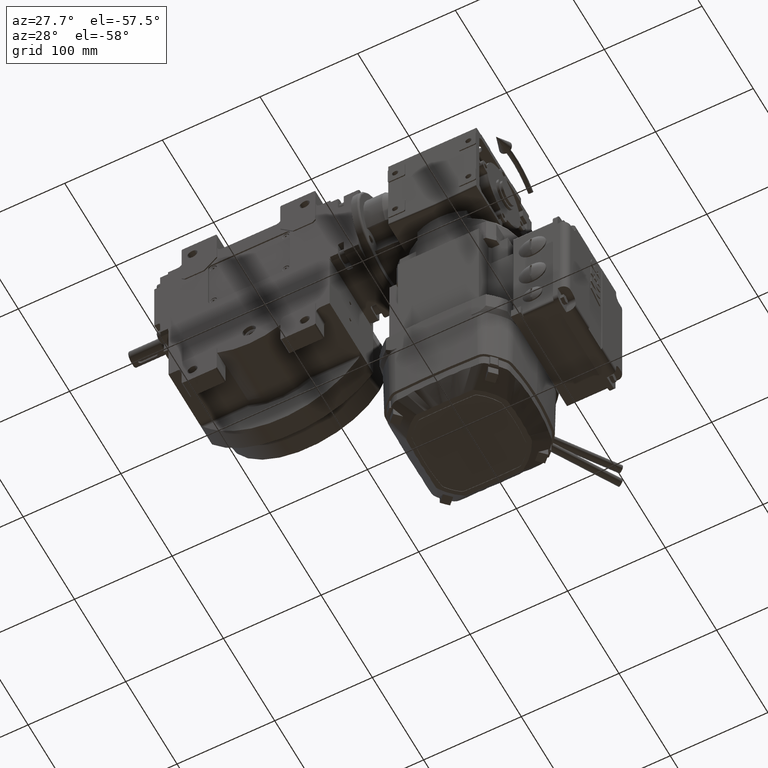
[diagram: clean part render]
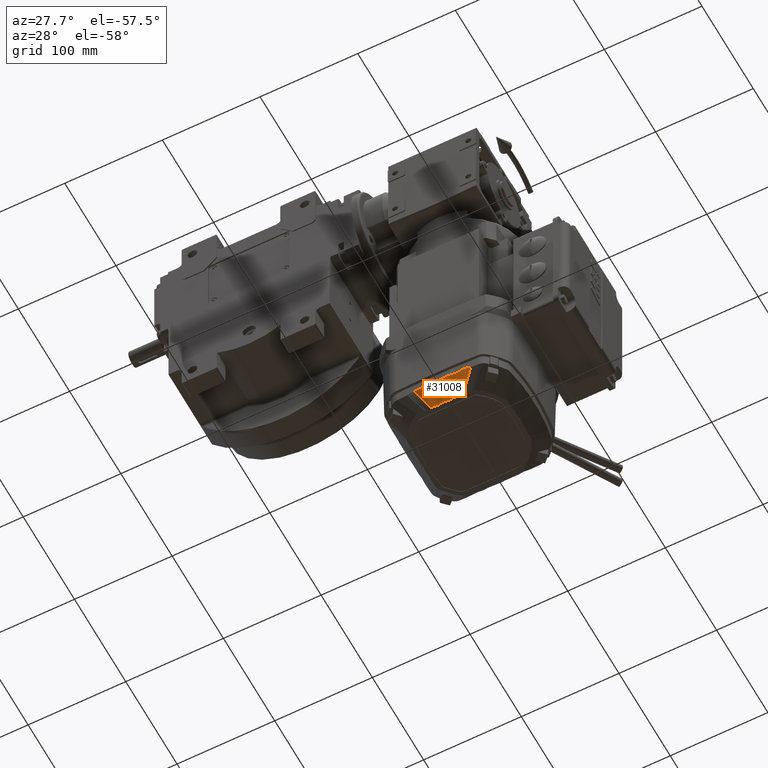
[diagram: same view with one face highlighted and labeled with its STEP entity id]
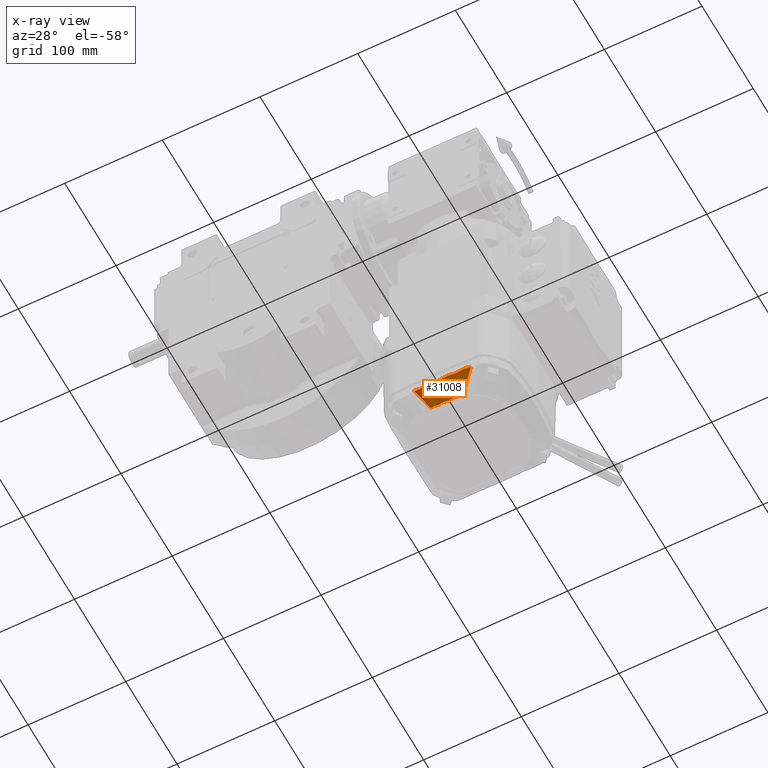
[diagram: x-ray of the same camera — body ghosted, the highlighted face saturated]
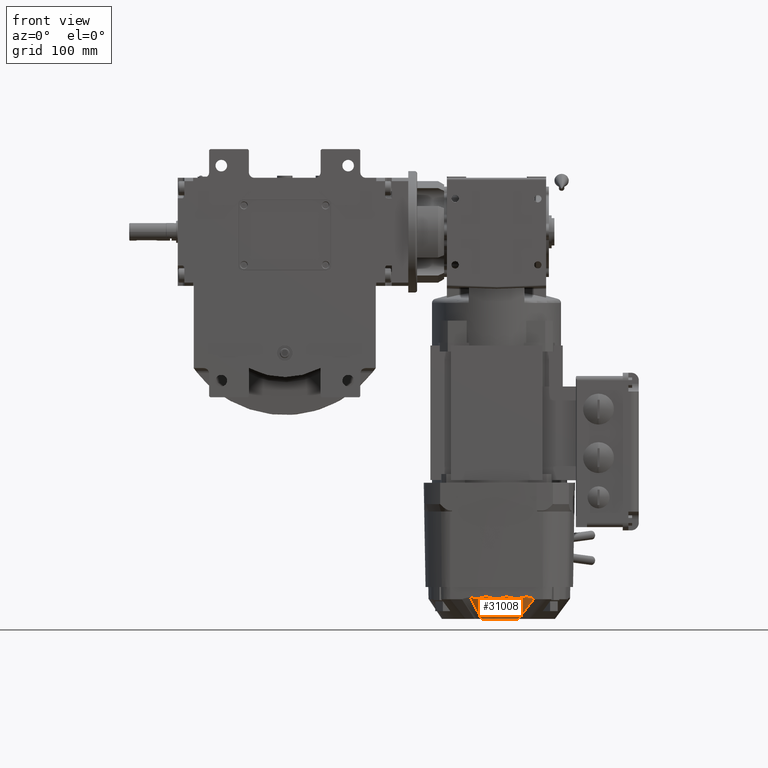
[diagram: same view with one face highlighted and labeled with its STEP entity id]
A machine part, auxiliary view. The second image highlights one B-rep face of the part: STEP entity #31008.
The next image is the same camera in x-ray: the body ghosted, the highlighted face saturated — about 0% of this face is hidden behind the body in this view.
A second angle (front view) of the same face is appended — the face is thin or edge-on in the first view.
In plain terms, the highlighted face is a freeform B-spline surface patch.
Its self-contained STEP definition (entity closure, byte-faithful):
#38 = B_SPLINE_CURVE_WITH_KNOTS ( 'NONE', 1,
 ( #98075, #21026 ),
 .UNSPECIFIED., .F., .F.,
 ( 2, 2 ),
 ( -0.9859023384280570790, 0.000000000000000000 ),
 .UNSPECIFIED. ) ;
#116 = CARTESIAN_POINT ( 'NONE',  ( 331.0370144584160244, 1.720845688168992638E-12, -39.73047863957211945 ) ) ;
#260 = CARTESIAN_POINT ( 'NONE',  ( 350.9000000000003183, -0.02982463484393388722, -26.49999038886818781 ) ) ;
#424 = CARTESIAN_POINT ( 'NONE',  ( 350.9000000000002615, -8.081316955174861150, -26.21184245469358842 ) ) ;
#458 = CARTESIAN_POINT ( 'NONE',  ( 331.0516601573107209, -28.29006789362765417, -38.31703912162994641 ) ) ;
#584 = CARTESIAN_POINT ( 'NONE',  ( 332.4324418337432121, 18.71056344623518797, -38.50412069238753787 ) ) ;
#911 = CARTESIAN_POINT ( 'NONE',  ( 350.9000000000002615, -13.38697555981342013, -26.13257529162125437 ) ) ;
#944 = CARTESIAN_POINT ( 'NONE',  ( 331.7810185787394630, -22.67919112487921041, -38.43840761124786098 ) ) ;
#1065 = CARTESIAN_POINT ( 'NONE',  ( 332.1272677621698790, 15.01979998254338255, -38.56787794727511454 ) ) ;
#1407 = CARTESIAN_POINT ( 'NONE',  ( 350.9000000000003183, -10.79021243915664918, -26.41518338079028183 ) ) ;
#1441 = CARTESIAN_POINT ( 'NONE',  ( 331.1949263269301014, -29.55778937005160145, -38.27999472356720645 ) ) ;
#1567 = CARTESIAN_POINT ( 'NONE',  ( 331.5282095180683086, 13.01610816431540130, -38.60469223899147551 ) ) ;
#1917 = CARTESIAN_POINT ( 'NONE',  ( 350.9000000000002615, -13.71965351597323668, -26.06535594798371136 ) ) ;
#1976 = CARTESIAN_POINT ( 'NONE',  ( 350.8999999999999773, -3.172584385737059698, -26.15664760192564842 ) ) ;
#2074 = CARTESIAN_POINT ( 'NONE',  ( 332.0226682068279160, 4.030723539629281760, -38.66792690654884268 ) ) ;
#2094 = EDGE_CURVE ( 'NONE', #39205, #98514, #44966, .T. ) ;
#2451 = CARTESIAN_POINT ( 'NONE',  ( 331.8226091932697841, -31.77660566723973545, -38.20515345433737053 ) ) ;
#2479 = CARTESIAN_POINT ( 'NONE',  ( 331.0370144584160244, 13.14146002382091183, -38.90599076660861755 ) ) ;
#2567 = CARTESIAN_POINT ( 'NONE',  ( 332.0968613726747662, 3.757441562059234297, -38.66766405927829453 ) ) ;
#2918 = CARTESIAN_POINT ( 'NONE',  ( 341.7228670757830287, -27.08739032771067912, -32.35153135563922433 ) ) ;
#2967 = CARTESIAN_POINT ( 'NONE',  ( 331.1000000000000227, 7.072529151259637992, -38.72262364996031891 ) ) ;
#3059 = CARTESIAN_POINT ( 'NONE',  ( 331.7834289291170080, 4.828427607804667510, -38.66879023712774455 ) ) ;
#3207 = CARTESIAN_POINT ( 'NONE',  ( 350.9086332884360218, -21.45566764440509644, -26.69159597724335242 ) ) ;
#3475 = CARTESIAN_POINT ( 'NONE',  ( 331.0370144584170475, -5.582175992576154933, -39.00875225601692620 ) ) ;
#3566 = CARTESIAN_POINT ( 'NONE',  ( 331.7431974623766564, -4.956777389790827826, -38.66890476712988800 ) ) ;
#4075 = CARTESIAN_POINT ( 'NONE',  ( 332.2449624576193514, -3.134123762149188419, -38.66712191450561420 ) ) ;
#4214 = CARTESIAN_POINT ( 'NONE',  ( 331.0370144584170475, -35.23209801158039056, -39.44522906005281726 ) ) ;
#4478 = CARTESIAN_POINT ( 'NONE',  ( 331.0204624657180261, 24.20830785796060525, -38.64222024592661597 ) ) ;
#4576 = CARTESIAN_POINT ( 'NONE',  ( 331.5194893862683898, -12.98329916314866850, -38.60523824604470633 ) ) ;
#4988 = CARTESIAN_POINT ( 'NONE',  ( 331.0204624664160065, 24.30459199179399477, -38.61581204078371599 ) ) ;
#5078 = CARTESIAN_POINT ( 'NONE',  ( 331.2931874538283523, -6.787598020252789688, -38.66666609749412231 ) ) ;
#5493 = CARTESIAN_POINT ( 'NONE',  ( 350.9086332884469925, 13.50997438297349440, -26.10081947105414812 ) ) ;
#5594 = CARTESIAN_POINT ( 'NONE',  ( 331.5297131975209481, -13.01933214437362629, -38.60462012003426224 ) ) ;
#5663 = CARTESIAN_POINT ( 'NONE',  ( 350.9000000000002615, 11.26554377673663687, -26.39920647965873712 ) ) ;
#5733 = CARTESIAN_POINT ( 'NONE',  ( 350.8999999999999773, -12.10344205412949847, -26.35342811553564957 ) ) ;
#5836 = CARTESIAN_POINT ( 'NONE',  ( 331.3791336743979627, 24.01484564588049508, -38.41615272331631559 ) ) ;
#6001 = CARTESIAN_POINT ( 'NONE',  ( 350.8999999999999773, 13.07419546363700036, -26.19794888374504893 ) ) ;
#6096 = CARTESIAN_POINT ( 'NONE',  ( 331.8520206075876899, -14.00444010244740056, -38.58653343935728941 ) ) ;
#6172 = CARTESIAN_POINT ( 'NONE',  ( 350.9000000000002615, 11.61558382400323808, -26.37638643529135507 ) ) ;
#6245 = CARTESIAN_POINT ( 'NONE',  ( 350.9086332884349986, -13.02047294460739835, -26.20269809224085122 ) ) ;
#6341 = CARTESIAN_POINT ( 'NONE',  ( 331.8508857926344717, 14.01252828662932082, -38.58641521197737490 ) ) ;
#6397 = CARTESIAN_POINT ( 'NONE',  ( 350.9000000000003752, 2.537002354450307529, -26.27733116519849332 ) ) ;
#6607 = CARTESIAN_POINT ( 'NONE',  ( 331.6798767611127232, -5.165786223702815150, -38.66901252455406279 ) ) ;
#6688 = CARTESIAN_POINT ( 'NONE',  ( 350.9000000000003183, 8.383099593297382413, -26.26123629098239931 ) ) ;
#6768 = CARTESIAN_POINT ( 'NONE',  ( 331.1000000000000227, -34.50325212152788623, -39.18284850836082001 ) ) ;
#6861 = CARTESIAN_POINT ( 'NONE',  ( 331.1766737200076705, 11.36416314780568015, -38.62973367594314311 ) ) ;
#6912 = CARTESIAN_POINT ( 'NONE',  ( 350.9000000000002615, -3.821039903795087955, -26.07391298707522864 ) ) ;
#7130 = CARTESIAN_POINT ( 'NONE',  ( 331.7501409338859162, -22.79245201376005170, -38.43652827749264134 ) ) ;
#7208 = CARTESIAN_POINT ( 'NONE',  ( 350.9000000000002615, 11.59512508039871648, -26.37791608777071772 ) ) ;
#7280 = CARTESIAN_POINT ( 'NONE',  ( 350.8999999999999773, -5.362464517907062245, -25.95900700614734902 ) ) ;
#7417 = CARTESIAN_POINT ( 'NONE',  ( 350.9000000000002046, 2.771285326023140261, -26.23367891476994984 ) ) ;
#7625 = CARTESIAN_POINT ( 'NONE',  ( 331.2807866541028829, -24.88675957092123525, -38.39785970958058670 ) ) ;
#7772 = CARTESIAN_POINT ( 'NONE',  ( 350.8999999999999773, -4.042368987954874981, -26.03011168334474945 ) ) ;
#7909 = CARTESIAN_POINT ( 'NONE',  ( 350.9000000000004320, -4.116981799742811532, -26.04243075822534337 ) ) ;
#8115 = CARTESIAN_POINT ( 'NONE',  ( 331.0726493902024004, -26.64241099599354357, -38.35906145339139783 ) ) ;
#8400 = CARTESIAN_POINT ( 'NONE',  ( 350.9000000000002615, -7.017145590449370474, -26.05947963242814325 ) ) ;
#8567 = CARTESIAN_POINT ( 'NONE',  ( 350.9000000000004320, -8.130936386084059109, -26.22025241557107123 ) ) ;
#8600 = CARTESIAN_POINT ( 'NONE',  ( 331.2612644418962304, -25.00540246429450164, -38.39542139865650228 ) ) ;
#8728 = CARTESIAN_POINT ( 'NONE',  ( 331.9048973551213635, 14.18522502597808810, -38.58318956685674550 ) ) ;
#9059 = CARTESIAN_POINT ( 'NONE',  ( 350.9000000000004320, -10.85957379128768707, -26.41375999696934329 ) ) ;
#9092 = CARTESIAN_POINT ( 'NONE',  ( 331.1968508529378710, -25.40423058193293215, -38.38718258724736643 ) ) ;
#9215 = CARTESIAN_POINT ( 'NONE',  ( 331.9603553473447732, 14.37082491134883888, -38.57974134101638697 ) ) ;
#9556 = CARTESIAN_POINT ( 'NONE',  ( 350.9000000000002046, -10.31646250349141702, -26.42362365935571944 ) ) ;
#9616 = CARTESIAN_POINT ( 'NONE',  ( 350.8999999999999773, 1.375733136250611999, -26.45665827129975156 ) ) ;
#9710 = CARTESIAN_POINT ( 'NONE',  ( 331.7374259145421433, 4.976473890408736445, -38.66890886208650358 ) ) ;
#10059 = CARTESIAN_POINT ( 'NONE',  ( 350.9000000000002046, -15.53960145884695443, -25.83554412441901249 ) ) ;
#10095 = CARTESIAN_POINT ( 'NONE',  ( 331.8357546487558238, -31.80719490814935924, -38.20401090403920108 ) ) ;
#10121 = CARTESIAN_POINT ( 'NONE',  ( 331.1000000000000227, 13.12381627591510735, -38.86545736848982102 ) ) ;
#10221 = CARTESIAN_POINT ( 'NONE',  ( 332.0231230940617024, 4.029050686168567097, -38.66792529690305003 ) ) ;
#10584 = CARTESIAN_POINT ( 'NONE',  ( 341.4289579834088499, -27.31694892559013610, -32.54815890073715678 ) ) ;
#10628 = CARTESIAN_POINT ( 'NONE',  ( 350.8999999999999773, 4.048231168643029676, -26.02910516801565066 ) ) ;
#10724 = CARTESIAN_POINT ( 'NONE',  ( 331.8749716309418432, 4.541039918010380205, -38.66845250795842048 ) ) ;
#10874 = CARTESIAN_POINT ( 'NONE',  ( 350.8999999999999773, -21.47873934634950288, -26.70338166219175235 ) ) ;
#11137 = CARTESIAN_POINT ( 'NONE',  ( 350.9086332884349986, -3.171537075940173089, -26.15106153701884750 ) ) ;
#11233 = CARTESIAN_POINT ( 'NONE',  ( 332.0086346116867730, -4.081429438051532799, -38.66797887929823929 ) ) ;
#11648 = CARTESIAN_POINT ( 'NONE',  ( 331.0370144584170475, 16.40890538386641140, -39.42672229492151814 ) ) ;
#11737 = CARTESIAN_POINT ( 'NONE',  ( 331.6874486446941432, -5.140134565846969039, -38.66900453957200767 ) ) ;
#11803 = EDGE_CURVE ( 'NONE', #56073, #98514, #38, .T. ) ;
#11884 = CARTESIAN_POINT ( 'NONE',  ( 331.0204624591270317, -35.26885131446580601, -39.46403842682931185 ) ) ;
#12245 = CARTESIAN_POINT ( 'NONE',  ( 331.4696247248687655, -12.80263594084512135, -38.60829883885386238 ) ) ;
#12609 = CARTESIAN_POINT ( 'NONE',  ( 333.1000000000000227, -33.80011624197049258, -38.12055416519731921 ) ) ;
#12658 = CARTESIAN_POINT ( 'NONE',  ( 331.0999999740340058, 24.19743078727429264, -38.58330881551881930 ) ) ;
#12748 = CARTESIAN_POINT ( 'NONE',  ( 332.3457736983457380, -16.20535499662724632, -38.54677893329982652 ) ) ;
#13257 = CARTESIAN_POINT ( 'NONE',  ( 331.1426490565143581, -11.14948695650827837, -38.63265469430444199 ) ) ;
#13337 = CARTESIAN_POINT ( 'NONE',  ( 350.9000000000002046, 4.728667966372223752, -25.98759081349751554 ) ) ;
#13407 = CARTESIAN_POINT ( 'NONE',  ( 331.0370144584170475, -34.54626783990150329, -39.22312561114681984 ) ) ;
#13673 = CARTESIAN_POINT ( 'NONE',  ( 350.8999999999999773, 10.83620903271578761, -26.43704744535425277 ) ) ;
#13771 = CARTESIAN_POINT ( 'NONE',  ( 331.0662500100693251, -10.24768404188958293, -38.64297067083256110 ) ) ;
#13846 = CARTESIAN_POINT ( 'NONE',  ( 350.9000000000002615, 8.566591766732582158, -26.28627425809025198 ) ) ;
#13919 = CARTESIAN_POINT ( 'NONE',  ( 350.8999999999999773, -7.565785065023117539, -26.12143010820074807 ) ) ;
#14011 = CARTESIAN_POINT ( 'NONE',  ( 332.4121676804576850, 19.05999797644828675, -38.49828970040481124 ) ) ;
#14062 = CARTESIAN_POINT ( 'NONE',  ( 350.9000000000002615, -2.498243830826895273, -26.28422183135910828 ) ) ;
#14267 = CARTESIAN_POINT ( 'NONE',  ( 332.4359960092796769, -17.33637429057655766, -38.52730466427403400 ) ) ;
#14344 = CARTESIAN_POINT ( 'NONE',  ( 350.9000000000002046, 9.595076716844957332, -26.39398478793407321 ) ) ;
#14420 = CARTESIAN_POINT ( 'NONE',  ( 331.1000000000000227, -14.65538804619839830, -39.15423543101361759 ) ) ;
#14517 = CARTESIAN_POINT ( 'NONE',  ( 331.4039547752595354, 12.54251301760062631, -38.61253490926385723 ) ) ;
#14571 = CARTESIAN_POINT ( 'NONE',  ( 350.9000000000002046, 2.683915367327441182, -26.25032154285083053 ) ) ;
#14639 = CARTESIAN_POINT ( 'NONE',  ( 341.9782778894146418, -26.88784271730065711, -32.18066033283201932 ) ) ;
#14775 = CARTESIAN_POINT ( 'NONE',  ( 331.7421818642796438, -22.82137086242816792, -38.43604807065022300 ) ) ;
#14848 = CARTESIAN_POINT ( 'NONE',  ( 350.9000000000003183, 9.147261781608486686, -26.35276400402806019 ) ) ;
#14924 = CARTESIAN_POINT ( 'NONE',  ( 331.0370144584170475, -14.67511924050959848, -39.19519811973101753 ) ) ;
#15066 = CARTESIAN_POINT ( 'NONE',  ( 350.9000000000002615, -2.992318336578996707, -26.19337208131772599 ) ) ;
#15272 = CARTESIAN_POINT ( 'NONE',  ( 331.6175787591870403, -23.29032399543998011, -38.42807493398419894 ) ) ;
#15419 = CARTESIAN_POINT ( 'NONE',  ( 350.8999999999999773, -10.72697200017339014, -26.43777617955955250 ) ) ;
#15554 = CARTESIAN_POINT ( 'NONE',  ( 350.9000000000004320, -2.907009442087957307, -26.20859032956703061 ) ) ;
#15752 = CARTESIAN_POINT ( 'NONE',  ( 331.2617141415223614, -25.00262803536785938, -38.39547865549909034 ) ) ;
#15896 = CARTESIAN_POINT ( 'NONE',  ( 350.9086332884349986, 1.804112415015879378E-12, -26.51592849572535115 ) ) ;
#16035 = CARTESIAN_POINT ( 'NONE',  ( 350.9000000000003752, 1.046402624989254182, -26.47150953675148344 ) ) ;
#16202 = CARTESIAN_POINT ( 'NONE',  ( 350.9000000000003183, -8.230219996042221098, -26.23662544680060904 ) ) ;
#16233 = CARTESIAN_POINT ( 'NONE',  ( 331.1894300670189750, -29.52348734937848818, -38.28104232181449618 ) ) ;
#16361 = CARTESIAN_POINT ( 'NONE',  ( 331.7935061594753279, 13.83771821975925498, -38.58970167286201303 ) ) ;
#16713 = CARTESIAN_POINT ( 'NONE',  ( 350.9000000000002615, -13.48947714561957589, -26.11159506834139421 ) ) ;
#16750 = CARTESIAN_POINT ( 'NONE',  ( 331.7402197774970887, -22.82848414099943923, -38.43592992788639862 ) ) ;
#16878 = CARTESIAN_POINT ( 'NONE',  ( 332.4235854942670585, 18.87754157150029855, -38.50133200864051020 ) ) ;
#17221 = CARTESIAN_POINT ( 'NONE',  ( 350.9000000000003183, -8.038797867325433444, -26.20451554401060079 ) ) ;
#17260 = CARTESIAN_POINT ( 'NONE',  ( 332.5867524133730058, -33.23083642598670195, -38.14758362790717428 ) ) ;
#17385 = CARTESIAN_POINT ( 'NONE',  ( 332.0042784083442484, 14.52940208540862166, -38.57682004762514083 ) ) ;
#17731 = CARTESIAN_POINT ( 'NONE',  ( 350.9000000000002046, -13.03217379395144171, -26.19922630706350475 ) ) ;
#17790 = CARTESIAN_POINT ( 'NONE',  ( 331.0370144584160244, 9.342803570114854850, -38.61907821594461865 ) ) ;
#17879 = CARTESIAN_POINT ( 'NONE',  ( 331.8686496849567789, 4.561323540872144200, -38.66847626242083180 ) ) ;
#18241 = CARTESIAN_POINT ( 'NONE',  ( 340.3143125740985511, -28.18682723078370245, -33.29387578713442508 ) ) ;
#18294 = CARTESIAN_POINT ( 'NONE',  ( 331.0370144584160244, 11.61601710288509537, -38.69910004657162261 ) ) ;
#18383 = CARTESIAN_POINT ( 'NONE',  ( 331.9002910894167258, 4.459474741147290366, -38.66835776742478714 ) ) ;
#18537 = CARTESIAN_POINT ( 'NONE',  ( 350.9086332884360218, -21.47273960285620120, -26.69783640945124858 ) ) ;
#18798 = CARTESIAN_POINT ( 'NONE',  ( 350.8999999999999773, 6.710952709205630917, -26.01028167833405291 ) ) ;
#18890 = CARTESIAN_POINT ( 'NONE',  ( 332.0712936103691959, -3.849534206284578541, -38.66775190014099195 ) ) ;
#19035 = CARTESIAN_POINT ( 'NONE',  ( 331.1000000000000227, -35.21360909685961360, -39.41295838170601940 ) ) ;
#19295 = CARTESIAN_POINT ( 'NONE',  ( 331.0204624591270317, 4.046166762056296662, -39.35190048506441940 ) ) ;
#19384 = CARTESIAN_POINT ( 'NONE',  ( 332.3494099702928679, 2.573943207235910524, -38.66673862112776305 ) ) ;
#19541 = CARTESIAN_POINT ( 'NONE',  ( 331.0204624591270317, -35.29411536513449477, -39.47221949909392436 ) ) ;
#19901 = CARTESIAN_POINT ( 'NONE',  ( 331.7357771884405224, 4.981858766787484072, -38.66891248431443273 ) ) ;
#20321 = CARTESIAN_POINT ( 'NONE',  ( 350.9086332884349986, 12.21063209881828548, -26.33400176034885121 ) ) ;
#20408 = CARTESIAN_POINT ( 'NONE',  ( 331.3009478539784709, -6.745765951390344739, -38.66679646831995143 ) ) ;
#20558 = CARTESIAN_POINT ( 'NONE',  ( 350.9086332884360218, -21.48981156130719228, -26.70407684165905238 ) ) ;
#20912 = CARTESIAN_POINT ( 'NONE',  ( 331.0678822218824848, -8.319084312320873309, -38.66003656816361911 ) ) ;
#21026 = CARTESIAN_POINT ( 'NONE',  ( 350.8999999999999773, 13.48557249643078748, -26.11230852323435414 ) ) ;
#21060 = CARTESIAN_POINT ( 'NONE',  ( 331.0204624591270317, -22.43590995853220349, -39.06603479450861727 ) ) ;
#21261 = CARTESIAN_POINT ( 'NONE',  ( 350.8999999999999773, 13.48557249643078748, -26.11230852323435414 ) ) ;
#21327 = CARTESIAN_POINT ( 'NONE',  ( 331.0370144584160244, 21.51887662300419635, -39.24790716928201562 ) ) ;
#21430 = CARTESIAN_POINT ( 'NONE',  ( 332.1879587774033098, -15.30507861670686509, -38.56274914376371044 ) ) ;
#21505 = CARTESIAN_POINT ( 'NONE',  ( 350.9000000000002046, 8.201038719597434579, -26.23150583123819857 ) ) ;
#21576 = CARTESIAN_POINT ( 'NONE',  ( 331.0370144584170475, -16.23233140443358735, -39.40710244153031994 ) ) ;
#21673 = CARTESIAN_POINT ( 'NONE',  ( 332.3362554598979273, 16.19323614444499171, -38.54703367489798183 ) ) ;
#21725 = CARTESIAN_POINT ( 'NONE',  ( 350.9000000000002615, 2.387043772692944543, -26.30287861041325570 ) ) ;
#21848 = CARTESIAN_POINT ( 'NONE',  ( 331.0204624661830053, 24.27249728051619826, -38.62461477583131852 ) ) ;
#21909 = B_SPLINE_CURVE_WITH_KNOTS ( 'NONE', 3,
 ( #12609, #43740, #74862, #36084, #25901, #18241, #41711, #10584, #2918, #96304, #26410, #14639, #44238, #61558, #28941, #100351, #84552, #69219 ),
 .UNSPECIFIED., .F., .F.,
 ( 4, 2, 2, 1, 1, 1, 1, 1, 1, 2, 2, 4 ),
 ( 0.000000000000000000, 0.2500000000001290079, 0.3750000000001913469, 0.4375000000002227107, 0.4687500000002405298, 0.4843750000002521872, 0.4921875000002578493, 0.4960937500002580158, 0.4980468750002579603, 0.4990234375002580713, 0.5000000000002581269, 1.000000000000000000 ),
 .UNSPECIFIED. ) ;
#21947 = CARTESIAN_POINT ( 'NONE',  ( 332.4247891914366164, -17.11636238211863059, -38.53106350832027971 ) ) ;
#22017 = CARTESIAN_POINT ( 'NONE',  ( 350.9000000000001478, 7.861852990640310068, -26.17415593977236554 ) ) ;
#22088 = CARTESIAN_POINT ( 'NONE',  ( 331.0204624591270317, -34.55757196021319544, -39.23371004941531481 ) ) ;
#22177 = CARTESIAN_POINT ( 'NONE',  ( 331.6509893290337914, 13.42256020412191475, -38.59750445016585729 ) ) ;
#22229 = CARTESIAN_POINT ( 'NONE',  ( 350.9000000000002046, 2.397371892403166171, -26.30115907237105333 ) ) ;
#22408 = CARTESIAN_POINT ( 'NONE',  ( 350.9000000000002046, -19.14931104718191435, -26.04041008947872626 ) ) ;
#22440 = CARTESIAN_POINT ( 'NONE',  ( 331.2962829938397249, -6.770866001311685700, -38.66671850937165544 ) ) ;
#22514 = CARTESIAN_POINT ( 'NONE',  ( 350.9000000000002046, 8.742890556169788496, -26.30896782034485071 ) ) ;
#22587 = CARTESIAN_POINT ( 'NONE',  ( 350.8999999999999773, -13.02456010698060851, -26.20828195899985147 ) ) ;
#22725 = CARTESIAN_POINT ( 'NONE',  ( 350.9000000000002046, 2.726159896295740737, -26.24231111671123529 ) ) ;
#22932 = CARTESIAN_POINT ( 'NONE',  ( 331.6496230523370059, -23.16536052821702896, -38.43024109709697456 ) ) ;
#23067 = CARTESIAN_POINT ( 'NONE',  ( 333.1000000000000227, -33.80011624197049258, -38.12055416519731921 ) ) ;
#23089 = CARTESIAN_POINT ( 'NONE',  ( 331.0204624591270317, -9.381833394797228109, -38.62847550222232229 ) ) ;
#23224 = CARTESIAN_POINT ( 'NONE',  ( 350.9000000000002615, -3.466668038727361623, -26.11791030390872237 ) ) ;
#23397 = CARTESIAN_POINT ( 'NONE',  ( 350.9000000000002046, -15.65430404982175894, -25.82866057392293868 ) ) ;
#23430 = CARTESIAN_POINT ( 'NONE',  ( 331.3467255810990082, -24.51197208018519902, -38.40541333912442212 ) ) ;
#23586 = CARTESIAN_POINT ( 'NONE',  ( 350.8999999999999773, 7.577365459545792881, -26.12346511794704895 ) ) ;
#23718 = CARTESIAN_POINT ( 'NONE',  ( 350.9000000000002046, -2.714985274924291758, -26.24444787032560100 ) ) ;
#23886 = CARTESIAN_POINT ( 'NONE',  ( 350.9000000000003183, -10.80177449085620722, -26.41496379234323655 ) ) ;
#23918 = CARTESIAN_POINT ( 'NONE',  ( 331.8474508462742278, -22.42684249971980393, -38.44258970705966050 ) ) ;
#24034 = CARTESIAN_POINT ( 'NONE',  ( 331.7432862622125640, 13.69166445803605292, -38.59246559408266108 ) ) ;
#24383 = CARTESIAN_POINT ( 'NONE',  ( 350.9000000000002046, -7.576644503430671307, -26.12855848496120714 ) ) ;
#24411 = CARTESIAN_POINT ( 'NONE',  ( 332.0702994398086503, -21.47072589308067947, -38.45839520055253047 ) ) ;
#24539 = CARTESIAN_POINT ( 'NONE',  ( 331.5862072624261714, 13.21205264565495874, -38.60126200316808109 ) ) ;
#24888 = CARTESIAN_POINT ( 'NONE',  ( 350.9000000000003752, -8.428966208517646663, -26.26758394715781009 ) ) ;
#25046 = CARTESIAN_POINT ( 'NONE',  ( 331.8614600517413464, 14.04576557982788998, -38.58579313369165931 ) ) ;
#25251 = EDGE_LOOP ( 'NONE', ( #78923, #40326, #51199, #99463 ) ) ;
#25391 = CARTESIAN_POINT ( 'NONE',  ( 350.9000000000002615, -13.44540928278077629, -26.12061271347012337 ) ) ;
#25450 = CARTESIAN_POINT ( 'NONE',  ( 350.8999999999999773, 2.288184769384388417, -26.32636882201115114 ) ) ;
#25548 = CARTESIAN_POINT ( 'NONE',  ( 331.8237195210125492, 4.703140880113455324, -38.66864482316676543 ) ) ;
#25901 = CARTESIAN_POINT ( 'NONE',  ( 339.2588195060665157, -29.00979549789508383, -34.00002839127118648 ) ) ;
#25948 = CARTESIAN_POINT ( 'NONE',  ( 331.0370144584170475, 7.082149709155826756, -38.76300284875752311 ) ) ;
#26038 = CARTESIAN_POINT ( 'NONE',  ( 331.1209771835522133, 7.983269110326325801, -38.66138610728773983 ) ) ;
#26410 = CARTESIAN_POINT ( 'NONE',  ( 341.9418911813239674, -26.91627435514763533, -32.20500315886668119 ) ) ;
#26452 = CARTESIAN_POINT ( 'NONE',  ( 331.0204624591270317, 1.720845688168992638E-12, -39.74148565548082246 ) ) ;
#26541 = CARTESIAN_POINT ( 'NONE',  ( 332.3606615173785030, 2.508940300393331935, -38.66669725299911420 ) ) ;
#26956 = CARTESIAN_POINT ( 'NONE',  ( 331.0370144584170475, 2.442038870930446137, -39.59986312541442288 ) ) ;
#27050 = CARTESIAN_POINT ( 'NONE',  ( 332.0162106936546138, -4.053976998366311868, -38.66795144312343524 ) ) ;
#27193 = CARTESIAN_POINT ( 'NONE',  ( 350.8999999999999773, -21.49581486091920013, -26.70962293681515121 ) ) ;
#27458 = CARTESIAN_POINT ( 'NONE',  ( 331.1000000000000227, 21.48937299637160336, -39.20697495670801658 ) ) ;
#27550 = CARTESIAN_POINT ( 'NONE',  ( 332.2895875377332118, 2.899915925921659809, -38.66695912531881163 ) ) ;
#27976 = CARTESIAN_POINT ( 'NONE',  ( 331.0370144584160244, 24.26354010478950940, -38.61419181699051961 ) ) ;
#28065 = CARTESIAN_POINT ( 'NONE',  ( 331.7163055682260051, -13.61448880537957962, -38.59393256169022379 ) ) ;
#28493 = CARTESIAN_POINT ( 'NONE',  ( 350.8999999999999773, 13.50010940021029171, -26.10928223449885266 ) ) ;
#28580 = CARTESIAN_POINT ( 'NONE',  ( 331.0600580345524122, -10.13730721787655042, -38.64413833881810945 ) ) ;
#28658 = CARTESIAN_POINT ( 'NONE',  ( 350.9000000000003183, 8.626400929013907870, -26.29407535158277298 ) ) ;
#28722 = CARTESIAN_POINT ( 'NONE',  ( 350.9086332884349986, -16.71244140319719307, -25.67734553868555025 ) ) ;
#28941 = CARTESIAN_POINT ( 'NONE',  ( 342.0080326233931487, -26.86459230156054900, -32.16075433161798713 ) ) ;
#29078 = CARTESIAN_POINT ( 'NONE',  ( 331.5042750624409678, -12.92920146698489781, -38.60616253320377211 ) ) ;
#29154 = CARTESIAN_POINT ( 'NONE',  ( 350.9000000000003752, 6.527988334294499317, -26.01139429059802310 ) ) ;
#29227 = CARTESIAN_POINT ( 'NONE',  ( 331.0204624591270317, -14.68030441008991183, -39.20596272344001676 ) ) ;
#29322 = CARTESIAN_POINT ( 'NONE',  ( 331.8344828667735555, 13.96132829933371866, -38.58737428979554807 ) ) ;
#29378 = CARTESIAN_POINT ( 'NONE',  ( 350.9000000000003752, 2.061606627716698892, -26.35376721454544580 ) ) ;
#29494 = CARTESIAN_POINT ( 'NONE',  ( 350.9086332884460262, 13.49544510419919874, -26.10384325119465032 ) ) ;
#29593 = CARTESIAN_POINT ( 'NONE',  ( 331.6745202708079319, -5.184104740312625026, -38.66901702453300516 ) ) ;
#29668 = CARTESIAN_POINT ( 'NONE',  ( 350.9000000000003183, 6.113043613741907301, -25.98949453142815713 ) ) ;
#29737 = CARTESIAN_POINT ( 'NONE',  ( 350.8999999999999773, -6.687080366496179096, -26.00814458007035057 ) ) ;
#29832 = CARTESIAN_POINT ( 'NONE',  ( 331.8551230220290904, 14.02582426327023235, -38.58616631003453534 ) ) ;
#29882 = CARTESIAN_POINT ( 'NONE',  ( 350.9000000000001478, -3.848432358936483499, -26.07077950129938060 ) ) ;
#30097 = CARTESIAN_POINT ( 'NONE',  ( 331.5351864716103591, -13.03844394729112821, -38.60429087102642853 ) ) ;
#30176 = CARTESIAN_POINT ( 'NONE',  ( 350.9000000000003183, 8.880446825806526334, -26.32537769205224620 ) ) ;
#30242 = CARTESIAN_POINT ( 'NONE',  ( 331.0204624591270317, -11.66415930379918819, -38.71369172730781116 ) ) ;
#30378 = CARTESIAN_POINT ( 'NONE',  ( 350.9000000000003752, 2.708543569356516301, -26.24566452109407422 ) ) ;
#30507 = CARTESIAN_POINT ( 'NONE',  ( 331.3791336743979627, 24.01484564588049508, -38.41615272331631559 ) ) ;
#30584 = CARTESIAN_POINT ( 'NONE',  ( 331.8307991453860950, -22.49097093118421853, -38.44152728682346520 ) ) ;
#30659 = CARTESIAN_POINT ( 'NONE',  ( 350.9000000000002046, 7.880517822895600766, -26.17726181714693112 ) ) ;
#30733 = CARTESIAN_POINT ( 'NONE',  ( 331.0204624591270317, -32.27121564989899127, -38.61077814286521459 ) ) ;
#30872 = CARTESIAN_POINT ( 'NONE',  ( 350.9000000000004320, -2.811769095760518145, -26.22628460789718474 ) ) ;
#31008 = ADVANCED_FACE ( 'NONE', ( #42519 ), #64933, .F. ) ;
#31079 = CARTESIAN_POINT ( 'NONE',  ( 331.7167158776999258, -22.91362391910456253, -38.43451574781895630 ) ) ;
#31233 = CARTESIAN_POINT ( 'NONE',  ( 331.1000000000000227, 5.574535175843692514, -38.96799822282121539 ) ) ;
#31378 = CARTESIAN_POINT ( 'NONE',  ( 350.9000000000002046, -5.567575867526301181, -25.97449112603231924 ) ) ;
#31543 = CARTESIAN_POINT ( 'NONE',  ( 350.9000000000003183, -8.056512833237730931, -26.20758161293914057 ) ) ;
#31576 = CARTESIAN_POINT ( 'NONE',  ( 331.8136779207760014, -22.55637277342439617, -38.44044350517977193 ) ) ;
#31706 = CARTESIAN_POINT ( 'NONE',  ( 332.3575266707155720, 16.35837515448281465, -38.54414835591558841 ) ) ;
#32039 = CARTESIAN_POINT ( 'NONE',  ( 350.9000000000002615, -13.78565676633282777, -26.05278496294962665 ) ) ;
#32070 = CARTESIAN_POINT ( 'NONE',  ( 331.7606039059164686, -22.75426913845193511, -38.43716207894306081 ) ) ;
#32189 = CARTESIAN_POINT ( 'NONE',  ( 331.1284475156605822, 10.98012878741957898, -38.63459052881113820 ) ) ;
#32535 = CARTESIAN_POINT ( 'NONE',  ( 350.9000000000003183, -13.44155237796032765, -26.12140223345326717 ) ) ;
#32573 = CARTESIAN_POINT ( 'NONE',  ( 332.0844268834127888, -21.40282044052932875, -38.45951630366206331 ) ) ;
#32700 = CARTESIAN_POINT ( 'NONE',  ( 331.4784842621534722, 12.83812000613925441, -38.60772445662496466 ) ) ;
#33039 = CARTESIAN_POINT ( 'NONE',  ( 350.9000000000002615, -13.64424150978708639, -26.08005754085211692 ) ) ;
#33100 = CARTESIAN_POINT ( 'NONE',  ( 350.8999999999999773, 1.804112415015879378E-12, -26.52166959935205170 ) ) ;
#33200 = CARTESIAN_POINT ( 'NONE',  ( 332.5523650388252577, 1.357074595729959032, -38.66599437830909380 ) ) ;
#33599 = CARTESIAN_POINT ( 'NONE',  ( 331.0370144584170475, 4.044703040043950537, -39.34105523323751896 ) ) ;
#33691 = CARTESIAN_POINT ( 'NONE',  ( 331.8848583471580014, -4.507279714757183697, -38.66842450596602987 ) ) ;
#34097 = CARTESIAN_POINT ( 'NONE',  ( 331.0204624591270317, 7.084677899966917991, -38.77361411688351467 ) ) ;
#34191 = CARTESIAN_POINT ( 'NONE',  ( 331.7060202427188074, 5.080008204004010430, -38.66896926382440114 ) ) ;
#34604 = CARTESIAN_POINT ( 'NONE',  ( 350.9086332884349986, 6.708820762041101560, -26.00476658451054846 ) ) ;
#34696 = CARTESIAN_POINT ( 'NONE',  ( 331.1261372019399687, 7.934669957787527927, -38.66165828191553544 ) ) ;
#35117 = CARTESIAN_POINT ( 'NONE',  ( 350.9086332884469925, 13.52450366174778829, -26.09779569091374896 ) ) ;
#35205 = CARTESIAN_POINT ( 'NONE',  ( 331.9366382131233308, 4.337978076746905387, -38.66822811650218483 ) ) ;
#35347 = CARTESIAN_POINT ( 'NONE',  ( 331.0204624591270317, -35.24358726379720252, -39.45585735456482013 ) ) ;
#35619 = CARTESIAN_POINT ( 'NONE',  ( 350.9086332884349986, 13.06975457118070238, -26.19243640159995223 ) ) ;
#35715 = CARTESIAN_POINT ( 'NONE',  ( 331.5595461226815814, -13.12280871674954241, -38.60283198895700707 ) ) ;
#36084 = CARTESIAN_POINT ( 'NONE',  ( 338.5355452746079550, -29.57322402886307344, -34.48392401181373401 ) ) ;
#36091 = EDGE_CURVE ( 'NONE', #49778, #39205, #21909, .T. ) ;
#36226 = CARTESIAN_POINT ( 'NONE',  ( 331.6762750606827126, -5.178086208768844401, -38.66901566409251956 ) ) ;
#36307 = CARTESIAN_POINT ( 'NONE',  ( 350.9000000000002046, 8.148871425344935915, -26.22261331700064346 ) ) ;
#36527 = CARTESIAN_POINT ( 'NONE',  ( 350.8999999999999773, -19.86340088305579954, -26.21271615761864737 ) ) ;
#36645 = CARTESIAN_POINT ( 'NONE',  ( 350.9086332884460262, 13.48091582542490485, -26.10686703133514897 ) ) ;
#36735 = CARTESIAN_POINT ( 'NONE',  ( 331.6568428603080747, -13.43657866266789469, -38.59722095938749931 ) ) ;
#36810 = CARTESIAN_POINT ( 'NONE',  ( 350.9000000000004320, 10.91078651501432084, -26.41497315455668371 ) ) ;
#36879 = CARTESIAN_POINT ( 'NONE',  ( 350.9086332884349986, -19.42800849854819845, -26.03778528997705166 ) ) ;
#36974 = CARTESIAN_POINT ( 'NONE',  ( 332.4563164023732611, 17.53312476588998337, -38.52389834292434045 ) ) ;
#37137 = CARTESIAN_POINT ( 'NONE',  ( 331.0999999749199674, 24.16540632889510576, -38.59208843703341785 ) ) ;
#37237 = CARTESIAN_POINT ( 'NONE',  ( 332.2663166369740679, -15.69878451813171516, -38.55570488581263788 ) ) ;
#37313 = CARTESIAN_POINT ( 'NONE',  ( 350.9000000000004889, 9.169165155195711847, -26.35482931602603074 ) ) ;
#37386 = CARTESIAN_POINT ( 'NONE',  ( 331.0370144584170475, -18.58832839674609616, -39.48260351050341654 ) ) ;
#37480 = CARTESIAN_POINT ( 'NONE',  ( 331.8481481091208138, 14.00396733186128806, -38.58657554052255989 ) ) ;
#37537 = CARTESIAN_POINT ( 'NONE',  ( 350.9000000000002046, -1.987818221204944225, -26.36955281911598803 ) ) ;
#37757 = CARTESIAN_POINT ( 'NONE',  ( 332.4388986196100291, -17.40429817223281361, -38.52614660239300548 ) ) ;
#37833 = CARTESIAN_POINT ( 'NONE',  ( 350.9000000000002046, 12.24770326305229773, -26.32848546128774458 ) ) ;
#37901 = CARTESIAN_POINT ( 'NONE',  ( 350.9086332884349986, -8.450027536037296727, -26.27167764217095325 ) ) ;
#37994 = CARTESIAN_POINT ( 'NONE',  ( 331.1517496115160952, 11.17342816972034392, -38.63217450369887018 ) ) ;
#38043 = CARTESIAN_POINT ( 'NONE',  ( 350.9000000000002615, -3.228485934581040606, -26.15407078127597273 ) ) ;
#38261 = CARTESIAN_POINT ( 'NONE',  ( 331.7448455389657624, -22.81170441839109486, -38.43620860311899889 ) ) ;
#38333 = CARTESIAN_POINT ( 'NONE',  ( 350.9000000000003183, 2.807967625454118377, -26.22677516147373922 ) ) ;
#38401 = CARTESIAN_POINT ( 'NONE',  ( 331.1000000000000227, -9.365751998755111885, -38.57778527030551885 ) ) ;
#38535 = CARTESIAN_POINT ( 'NONE',  ( 350.9000000000003752, -3.831996721451297105, -26.07265584070945152 ) ) ;
#38737 = CARTESIAN_POINT ( 'NONE',  ( 332.0556082320204609, -21.54051963843478035, -38.45724283908813845 ) ) ;
#38899 = CARTESIAN_POINT ( 'NONE',  ( 331.1000000000000227, -7.083446778495955165, -38.72053417023432331 ) ) ;
#39033 = CARTESIAN_POINT ( 'NONE',  ( 350.9000000000003752, -7.271504262338722491, -26.08853551935050064 ) ) ;
#39203 = CARTESIAN_POINT ( 'NONE',  ( 350.9000000000002615, -10.78226016155771028, -26.41532842121354463 ) ) ;
#39205 = VERTEX_POINT ( 'NONE', #36527 ) ;
#39237 = CARTESIAN_POINT ( 'NONE',  ( 331.6175839953172044, -23.29030285168293801, -38.42807530658242854 ) ) ;
#39534 = CARTESIAN_POINT ( 'NONE',  ( 350.9000000000003752, -3.109830813443879460, -26.17338436024975934 ) ) ;
#39698 = CARTESIAN_POINT ( 'NONE',  ( 350.9000000000002615, -15.50347114691022554, -25.83786263370557990 ) ) ;
#39732 = CARTESIAN_POINT ( 'NONE',  ( 331.0568083505274330, -26.96758891824300974, -38.35113444062268684 ) ) ;
#39866 = CARTESIAN_POINT ( 'NONE',  ( 331.5654878203371823, 13.14243927676878876, -38.60248421490007331 ) ) ;
#40192 = CARTESIAN_POINT ( 'NONE',  ( 350.9000000000003752, -13.45115578044994109, -26.11943644392823671 ) ) ;
#40225 = CARTESIAN_POINT ( 'NONE',  ( 331.1769577133804319, -29.44323737295309584, -38.28348256633594815 ) ) ;
#40326 = ORIENTED_EDGE ( 'NONE', *, *, #36091, .F. ) ;
#40347 = CARTESIAN_POINT ( 'NONE',  ( 332.0875284581694018, 14.85443677050002620, -38.57088123811809766 ) ) ;
#40694 = CARTESIAN_POINT ( 'NONE',  ( 350.9000000000002615, -13.61012057462168912, -26.08695832953535643 ) ) ;
#40724 = CARTESIAN_POINT ( 'NONE',  ( 331.8090309584848683, -31.74477699145701592, -38.20633995253287907 ) ) ;
#40755 = CARTESIAN_POINT ( 'NONE',  ( 350.9086332884349986, 2.287421312710646859, -26.32071209223865083 ) ) ;
#40848 = CARTESIAN_POINT ( 'NONE',  ( 331.8603130128295788, 4.587933164449956358, -38.66850770026803019 ) ) ;
#41196 = CARTESIAN_POINT ( 'NONE',  ( 350.9000000000002615, -13.65402108705841044, -26.07813292097347357 ) ) ;
#41254 = CARTESIAN_POINT ( 'NONE',  ( 331.1000000000000227, -4.039133119328047528, -39.29978565317211547 ) ) ;
#41357 = CARTESIAN_POINT ( 'NONE',  ( 331.1315343646913902, 7.884894990844503404, -38.66193352310621378 ) ) ;
#41711 = CARTESIAN_POINT ( 'NONE',  ( 340.8347045381249814, -27.78088581372001897, -32.94572221943366230 ) ) ;
#41759 = CARTESIAN_POINT ( 'NONE',  ( 331.0370144584160244, 14.74032790317020236, -39.20749369412551744 ) ) ;
#41849 = CARTESIAN_POINT ( 'NONE',  ( 332.1324862412879497, -3.611040003732829629, -38.66753007965772326 ) ) ;
#42010 = CARTESIAN_POINT ( 'NONE',  ( 331.1000000000000227, -35.23884038539670627, -39.42113169288791852 ) ) ;
#42272 = CARTESIAN_POINT ( 'NONE',  ( 350.8999999999999773, 9.409738386060157112, -26.39892201998924648 ) ) ;
#42367 = CARTESIAN_POINT ( 'NONE',  ( 331.9320765871602248, -4.351646562476890523, -38.66825486476295026 ) ) ;
#42519 = FACE_OUTER_BOUND ( 'NONE', #25251, .T. ) ;
#42789 = CARTESIAN_POINT ( 'NONE',  ( 331.1000000000000227, 4.039133119331545174, -39.29978565317201600 ) ) ;
#42884 = CARTESIAN_POINT ( 'NONE',  ( 331.9800967010355066, 4.185126798272308157, -38.66807642873012441 ) ) ;
#43035 = CARTESIAN_POINT ( 'NONE',  ( 350.8999999999999773, -21.44458831720999470, -26.69089911294484807 ) ) ;
#43385 = CARTESIAN_POINT ( 'NONE',  ( 332.4329555765928035, -17.27023941494610781, -38.52843313738191000 ) ) ;
#43740 = CARTESIAN_POINT ( 'NONE',  ( 334.7426648070152737, -32.52423754990261529, -37.02152473299769042 ) ) ;
#43786 = CARTESIAN_POINT ( 'NONE',  ( 331.0204624591270317, 18.94577638135380582, -39.49122834326651343 ) ) ;
#43883 = CARTESIAN_POINT ( 'NONE',  ( 331.5894215694065679, -13.22311860800414429, -38.60107183848184320 ) ) ;
#43952 = CARTESIAN_POINT ( 'NONE',  ( 350.9000000000003183, 7.424990814208385359, -26.10844143443468113 ) ) ;
#44238 = CARTESIAN_POINT ( 'NONE',  ( 341.9938614195596642, -26.87566578024211950, -32.17023490604272240 ) ) ;
#44378 = CARTESIAN_POINT ( 'NONE',  ( 331.3530627761517167, -12.32771311551479876, -38.61593987806995898 ) ) ;
#44455 = CARTESIAN_POINT ( 'NONE',  ( 350.9000000000002046, 8.238299109724488645, -26.23786920626265484 ) ) ;
#44525 = CARTESIAN_POINT ( 'NONE',  ( 332.1768473425941579, -20.93010883899924934, -38.46731886549269319 ) ) ;
#44528 = CARTESIAN_POINT ( 'NONE',  ( 331.1000000000000227, -32.21985266573970819, -38.56049547108401754 ) ) ;
#44797 = CARTESIAN_POINT ( 'NONE',  ( 331.0204624591270317, 16.41473785084030013, -39.43757847464551958 ) ) ;
#44894 = CARTESIAN_POINT ( 'NONE',  ( 332.1982128050893266, -15.35601909133273146, -38.56183700857498309 ) ) ;
#44966 = B_SPLINE_CURVE_WITH_KNOTS ( 'NONE', 3,
 ( #93285, #22408, #53501, #84661, #54002, #69819, #89821, #23397, #60167, #10059, #64159, #39698, #62654, #55476, #93788, #47349, #32039, #1917, #48353, #71791, #86646, #47853, #41196, #33039, #40694, #78988, #16713, #95287, #40192, #25391, #32535, #71288, #911, #70807, #55992, #56480, #87635, #17731, #94270, #78491, #79487, #72310, #94777, #48855, #79991, #9059, #86148, #23886, #1407, #39203, #9556, #63647, #70310, #24888, #16202, #8567, #424, #31543, #87151, #17221, #63139, #54973, #24383, #39033, #54815, #70137, #8400, #53828, #68652, #31378, #62483, #92122, #7909, #47180, #83985, #29882, #38535, #6912, #93115, #54322, #23224, #38043, #39534, #61993, #69642, #46196, #45689, #93619, #15066, #60494, #15554, #30872, #69149, #85497, #23718, #92612, #53323, #52831, #14062, #37537, #91625, #46684, #77334, #61006, #260, #85979, #77817, #70641, #16035, #78316, #29378, #100278, #76825, #99778, #100766, #21725, #45188, #22229, #76316, #6397, #84485, #14571, #30378, #61488, #22725, #84983, #7417, #38333, #52613, #68432, #52095, #91918, #59758, #83267, #13337, #99555, #29668, #29154, #91401, #60787, #53112, #43952, #100071, #83774, #84267, #99042, #22017, #30659, #84768, #75588, #36307, #21505, #98546, #44455, #67925, #92401, #6688, #61281, #13846, #67421, #28658, #22514, #30176, #76094, #44967, #14848, #37313, #53612, #14344, #45482, #36810, #5663, #76604, #45982, #77120, #7208, #60274, #6172, #37833, #68943, #69436 ),
 .UNSPECIFIED., .F., .F.,
 ( 4, 2, 1, 1, 1, 1, 1, 2, 2, 1, 1, 1, 1, 1, 1, 1, 2, 2, 1, 1, 1, 1, 1, 2, 2, 2, 1, 1, 2, 2, 1, 1, 1, 1, 1, 1, 2, 2, 1, 1, 1, 1, 1, 1, 1, 2, 2, 1, 1, 2, 2, 2, 1, 1, 1, 1, 1, 1, 2, 2, 1, 1, 1, 1, 1, 1, 2, 2, 1, 1, 1, 1, 2, 2, 2, 1, 1, 1, 1, 2, 2, 1, 1, 1, 1, 1, 1, 1, 2, 2, 1, 1, 1, 1, 2, 2, 2, 2, 2, 2, 2, 1, 1, 2, 2, 1, 1, 2, 2, 1, 1, 1, 2, 2, 1, 1, 2, 2, 1, 1, 1, 2, 2, 1, 1, 1, 1, 1, 1, 2, 2, 4 ),
 ( 0.000000000000000000, 0.001953124999992903680, 0.002929687499989351400, 0.003417968749987570273, 0.003662109374986674722, 0.003784179687486227597, 0.003845214843736003384, 0.003875732421860889759, 0.003906249999985775701, 0.004882812499982139287, 0.005371093749980323899, 0.005615234374979413169, 0.005737304687478957804, 0.005798339843728730555, 0.005828857421853619533, 0.005844116210916063155, 0.005851745605447286266, 0.005859374999978510246, 0.006103515624978413968, 0.006225585937478365396, 0.006286621093728346314, 0.006317138671853335039, 0.006332397460915828100, 0.006340026855447072895, 0.006347656249978317691, 0.006835937499978001972, 0.007324218749977685385, 0.007568359374977538800, 0.007690429687477475483, 0.007812499999977413900, 0.01171874999997526111, 0.01367187499997419425, 0.01464843749997366690, 0.01513671874997339628, 0.01538085937497325924, 0.01550292968747319158, 0.01556396484372315689, 0.01562499999997312219, 0.02343749999997073175, 0.02734374999996952438, 0.02929687499996891722, 0.03027343749996860151, 0.03076171874996842109, 0.03100585937496832048, 0.03112792968746825456, 0.03118896484371821987, 0.03124999999996818517, 0.03906249999996683209, 0.04296874999996615901, 0.04492187499996581207, 0.04687499999996546513, 0.06249999999996269651, 0.07812499999995992095, 0.08593749999995854705, 0.08984374999995782540, 0.09179687499995746458, 0.09277343749995727029, 0.09326171874995715927, 0.09350585937495710376, 0.09374999999995704825, 0.1015624999999551886, 0.1054687499999542449, 0.1074218749999537870, 0.1083984374999535510, 0.1088867187499534400, 0.1091308593749533706, 0.1092529296874533429, 0.1093749999999533151, 0.1132812499999528155, 0.1152343749999525518, 0.1162109374999524131, 0.1166992187499523714, 0.1169433593749523714, 0.1171874999999523714, 0.1249999999999515110, 0.1562499999999481526, 0.1718749999999464873, 0.1796874999999456268, 0.1835937499999452105, 0.1855468749999449884, 0.1874999999999447664, 0.2187499999999414357, 0.2343749999999397426, 0.2421874999999389655, 0.2460937499999385492, 0.2480468749999383826, 0.2490234374999383271, 0.2495117187499383271, 0.2497558593749382994, 0.2499999999999382716, 0.2578124999999367728, 0.2617187499999359956, 0.2636718749999356626, 0.2646484374999354405, 0.2651367187499353850, 0.2656249999999353295, 0.2734374999999358291, 0.2812499999999363287, 0.3124999999999382161, 0.3749999999999418243, 0.4999999999999491518, 0.5624999999999529265, 0.5937499999999547029, 0.6093749999999557021, 0.6249999999999565903, 0.6406249999999575895, 0.6484374999999578115, 0.6523437499999579225, 0.6562499999999581446, 0.6718749999999583666, 0.6796874999999585887, 0.6835937499999583666, 0.6855468749999583666, 0.6874999999999583666, 0.7031249999999588107, 0.7109374999999590328, 0.7148437499999590328, 0.7187499999999590328, 0.7343749999999590328, 0.7421874999999589217, 0.7460937499999586997, 0.7480468749999585887, 0.7499999999999584777, 0.8124999999999573674, 0.8437499999999569233, 0.8593749999999567013, 0.8671874999999567013, 0.8710937499999569233, 0.8730468749999570344, 0.8740234374999570344, 0.8749999999999570344, 1.000000000000000000 ),
 .UNSPECIFIED. ) ;
#44967 = CARTESIAN_POINT ( 'NONE',  ( 350.9000000000000909, 9.114336993635452799, -26.34962037694337411 ) ) ;
#45035 = CARTESIAN_POINT ( 'NONE',  ( 350.9086332884349986, -9.355271183604379814, -26.38701320595665223 ) ) ;
#45134 = CARTESIAN_POINT ( 'NONE',  ( 332.2717453675425077, 15.74646441483557702, -38.55487898203887198 ) ) ;
#45188 = CARTESIAN_POINT ( 'NONE',  ( 350.9000000000003183, 2.393066393604924791, -26.30187694265760356 ) ) ;
#45401 = CARTESIAN_POINT ( 'NONE',  ( 331.4875998408460873, -5.865071191408572915, -38.66880876376266229 ) ) ;
#45482 = CARTESIAN_POINT ( 'NONE',  ( 350.9000000000003183, 10.20182080027347737, -26.42423241980432991 ) ) ;
#45552 = CARTESIAN_POINT ( 'NONE',  ( 331.0204624591270317, -13.16818982612619138, -38.92080763505052232 ) ) ;
#45640 = CARTESIAN_POINT ( 'NONE',  ( 331.3897988028910504, 12.48348507275955654, -38.61347519127391337 ) ) ;
#45689 = CARTESIAN_POINT ( 'NONE',  ( 350.9000000000002615, -2.999911351685655703, -26.19205482315317823 ) ) ;
#45904 = CARTESIAN_POINT ( 'NONE',  ( 331.1119866705234926, -28.95580353740585267, -38.29800532446936501 ) ) ;
#45982 = CARTESIAN_POINT ( 'NONE',  ( 350.9000000000003183, 11.53173177493231982, -26.38250901749044885 ) ) ;
#46055 = CARTESIAN_POINT ( 'NONE',  ( 331.1000000000000227, -20.89117593997180578, -39.27647780936061395 ) ) ;
#46196 = CARTESIAN_POINT ( 'NONE',  ( 350.9000000000004889, -3.006245982179477583, -26.19095822482303504 ) ) ;
#46412 = CARTESIAN_POINT ( 'NONE',  ( 331.6843105328648562, -23.03322970693493588, -38.43250399394352002 ) ) ;
#46554 = CARTESIAN_POINT ( 'NONE',  ( 331.1000000000000227, -18.56340002990108928, -39.44123835355951968 ) ) ;
#46684 = CARTESIAN_POINT ( 'NONE',  ( 350.9000000000003752, -0.6509144331479588264, -26.48807926593654472 ) ) ;
#46882 = CARTESIAN_POINT ( 'NONE',  ( 332.0607930944665327, -21.51603193056869756, -38.45764716943073580 ) ) ;
#47035 = CARTESIAN_POINT ( 'NONE',  ( 331.1000000000000227, -2.438657614667577356, -39.55818601327312223 ) ) ;
#47180 = CARTESIAN_POINT ( 'NONE',  ( 350.9000000000004889, -3.963501960375792166, -26.05810475222037326 ) ) ;
#47349 = CARTESIAN_POINT ( 'NONE',  ( 350.9000000000002046, -13.91788667890704012, -26.02843592219171853 ) ) ;
#47379 = CARTESIAN_POINT ( 'NONE',  ( 331.6181436466778791, -23.28809406788031922, -38.42811381787817737 ) ) ;
#47505 = CARTESIAN_POINT ( 'NONE',  ( 331.5748335120514412, 13.17396005589063890, -38.60193190489638226 ) ) ;
#47853 = CARTESIAN_POINT ( 'NONE',  ( 350.9000000000003752, -13.65843144134907483, -26.07726558635875946 ) ) ;
#47886 = CARTESIAN_POINT ( 'NONE',  ( 331.3020330705182914, -24.76190563118892030, -38.40040119169869826 ) ) ;
#48017 = CARTESIAN_POINT ( 'NONE',  ( 332.2122295121547495, 15.40847279672124692, -38.56087581997090297 ) ) ;
#48353 = CARTESIAN_POINT ( 'NONE',  ( 350.9000000000003183, -13.68667981727533167, -26.07174055666459367 ) ) ;
#48509 = CARTESIAN_POINT ( 'NONE',  ( 332.4555005415306255, 18.22586993758513429, -38.51222323003361225 ) ) ;
#48855 = CARTESIAN_POINT ( 'NONE',  ( 350.9000000000003752, -11.10210964155474400, -26.40656718884480370 ) ) ;
#48910 = CARTESIAN_POINT ( 'NONE',  ( 350.9086332884349986, -1.375269674953688570, -26.45094568200995155 ) ) ;
#49007 = CARTESIAN_POINT ( 'NONE',  ( 331.0567005942868377, 8.773153131033936347, -38.65635106578827873 ) ) ;
#49384 = CARTESIAN_POINT ( 'NONE',  ( 331.8317007158842102, -31.79779431243744980, -38.20436236092154303 ) ) ;
#49410 = CARTESIAN_POINT ( 'NONE',  ( 331.1000000000000227, 14.72042665358169700, -39.16649846915021982 ) ) ;
#49513 = CARTESIAN_POINT ( 'NONE',  ( 332.0186990163790028, 4.045308798595407929, -38.66794094440106022 ) ) ;
#49778 = VERTEX_POINT ( 'NONE', #23067 ) ;
#49922 = CARTESIAN_POINT ( 'NONE',  ( 331.1000000000000227, 9.330243985312874244, -38.57893153283811927 ) ) ;
#50010 = CARTESIAN_POINT ( 'NONE',  ( 332.0115153881706647, -4.071014664110346182, -38.66796844712203551 ) ) ;
#50157 = CARTESIAN_POINT ( 'NONE',  ( 331.0370144584170475, -35.25735524435189205, -39.45340851721302045 ) ) ;
#50424 = CARTESIAN_POINT ( 'NONE',  ( 350.9086332884349986, 8.461584621441502918, -26.27370819224114840 ) ) ;
#50515 = CARTESIAN_POINT ( 'NONE',  ( 331.8529610268532224, -4.610592469750683264, -38.66853928673370433 ) ) ;
#50925 = CARTESIAN_POINT ( 'NONE',  ( 331.0204624591270317, 21.52662989454529097, -39.25866376415131498 ) ) ;
#51017 = CARTESIAN_POINT ( 'NONE',  ( 332.1947280759251271, 3.359263642426141505, -38.66730871283434112 ) ) ;
#51199 = ORIENTED_EDGE ( 'NONE', *, *, #100706, .F. ) ;
#51433 = CARTESIAN_POINT ( 'NONE',  ( 331.0204624659500041, 24.24040256923840175, -38.63341751087892106 ) ) ;
#51518 = CARTESIAN_POINT ( 'NONE',  ( 331.1784505952102791, -7.413445108238891024, -38.66467272024828361 ) ) ;
#52021 = CARTESIAN_POINT ( 'NONE',  ( 331.3119833784866728, -6.687185017915522778, -38.66697375945653903 ) ) ;
#52095 = CARTESIAN_POINT ( 'NONE',  ( 350.9000000000003183, 3.080617264393955335, -26.17777879417729636 ) ) ;
#52164 = CARTESIAN_POINT ( 'NONE',  ( 331.1000000000000227, -16.21053371566868861, -39.36583366624921609 ) ) ;
#52439 = CARTESIAN_POINT ( 'NONE',  ( 350.8999999999999773, 13.52918320776930194, -26.10322965702784970 ) ) ;
#52532 = CARTESIAN_POINT ( 'NONE',  ( 331.2233804320054560, -11.66736128483599622, -38.62564620506429236 ) ) ;
#52613 = CARTESIAN_POINT ( 'NONE',  ( 350.9000000000002046, 2.878551256693140825, -26.21372850711954428 ) ) ;
#52683 = CARTESIAN_POINT ( 'NONE',  ( 350.9086332884349986, -7.563352051874111304, -26.11587159267924818 ) ) ;
#52778 = CARTESIAN_POINT ( 'NONE',  ( 332.3837438760014606, 19.42728259485306808, -38.49217961094475982 ) ) ;
#52831 = CARTESIAN_POINT ( 'NONE',  ( 350.9000000000003183, -2.598724976938554754, -26.26636762887710930 ) ) ;
#53035 = CARTESIAN_POINT ( 'NONE',  ( 331.0706744829650461, -10.32122667420057205, -38.64218364744987610 ) ) ;
#53112 = CARTESIAN_POINT ( 'NONE',  ( 350.9000000000001478, 7.354735988920939604, -26.09915149827369518 ) ) ;
#53181 = CARTESIAN_POINT ( 'NONE',  ( 331.0204624591270317, -28.23177174896479613, -38.15904181599321987 ) ) ;
#53275 = CARTESIAN_POINT ( 'NONE',  ( 331.5666093580323377, 13.14622926573130357, -38.60241787326260265 ) ) ;
#53323 = CARTESIAN_POINT ( 'NONE',  ( 350.9000000000002615, -2.700605220739022982, -26.24715736973714542 ) ) ;
#53501 = CARTESIAN_POINT ( 'NONE',  ( 350.9000000000002615, -18.42662961538383826, -25.92289627787400264 ) ) ;
#53534 = CARTESIAN_POINT ( 'NONE',  ( 331.3978610543340437, -30.58117975003886357, -38.24767272024060105 ) ) ;
#53612 = CARTESIAN_POINT ( 'NONE',  ( 350.9000000000003183, 9.178371366326539160, -26.35568847459260766 ) ) ;
#53685 = CARTESIAN_POINT ( 'NONE',  ( 331.1000000000000227, -24.80978493419008757, -38.47255629916492126 ) ) ;
#53828 = CARTESIAN_POINT ( 'NONE',  ( 350.9000000000002615, -6.623619800534520152, -26.01896597433092140 ) ) ;
#54002 = CARTESIAN_POINT ( 'NONE',  ( 350.9000000000002615, -16.77784074032949491, -25.80235947403060948 ) ) ;
#54038 = CARTESIAN_POINT ( 'NONE',  ( 331.6330590008517447, -23.22957362794091551, -38.42913126969003201 ) ) ;
#54183 = CARTESIAN_POINT ( 'NONE',  ( 350.9086332884349986, -4.041043003019550994, -26.02457834608744847 ) ) ;
#54322 = CARTESIAN_POINT ( 'NONE',  ( 350.9000000000003183, -3.672318748347604078, -26.09114420430308101 ) ) ;
#54534 = CARTESIAN_POINT ( 'NONE',  ( 331.2704384056140157, -24.94915833010221462, -38.39658012490372130 ) ) ;
#54674 = CARTESIAN_POINT ( 'NONE',  ( 331.1000000000000227, 2.438657614671047025, -39.55818601327312223 ) ) ;
#54815 = CARTESIAN_POINT ( 'NONE',  ( 350.9000000000003752, -7.142998028046048553, -26.07346103587798325 ) ) ;
#54973 = CARTESIAN_POINT ( 'NONE',  ( 350.9000000000002615, -7.847265900496440238, -26.17117674835578711 ) ) ;
#55008 = CARTESIAN_POINT ( 'NONE',  ( 331.0475593739911915, -27.26700202787498384, -38.34366735573399865 ) ) ;
#55137 = CARTESIAN_POINT ( 'NONE',  ( 331.7097225890958043, 13.59545557967100216, -38.59428266580457034 ) ) ;
#55476 = CARTESIAN_POINT ( 'NONE',  ( 350.9000000000003183, -14.71752168629381607, -25.90454369833471304 ) ) ;
#55509 = CARTESIAN_POINT ( 'NONE',  ( 332.0155262162730310, -21.72836703856495078, -38.45414100913131961 ) ) ;
#55641 = CARTESIAN_POINT ( 'NONE',  ( 331.0678960358946483, 10.42083873717680120, -38.64137800957755786 ) ) ;
#55992 = CARTESIAN_POINT ( 'NONE',  ( 350.9000000000003183, -13.23411035015026016, -26.16244674996219644 ) ) ;
#56028 = CARTESIAN_POINT ( 'NONE',  ( 333.1000000000000227, -33.80011624197049258, -38.12055416519731921 ) ) ;
#56073 = VERTEX_POINT ( 'NONE', #30507 ) ;
#56155 = CARTESIAN_POINT ( 'NONE',  ( 331.8158797332990844, 13.90436630329982748, -38.58844438164243229 ) ) ;
#56480 = CARTESIAN_POINT ( 'NONE',  ( 350.9000000000002615, -13.15861472420653833, -26.17664333671682186 ) ) ;
#56541 = CARTESIAN_POINT ( 'NONE',  ( 331.0204624591270317, 5.584183926305441581, -39.01946202704581168 ) ) ;
#56636 = CARTESIAN_POINT ( 'NONE',  ( 332.3659181892410857, 2.477997479932528169, -38.66667794709701411 ) ) ;
#57041 = CARTESIAN_POINT ( 'NONE',  ( 331.0370144584170475, -2.442038870926949379, -39.59986312541451525 ) ) ;
#57138 = CARTESIAN_POINT ( 'NONE',  ( 331.0289644032831120, 9.666957417340062975, -38.64925999434505854 ) ) ;
#57557 = CARTESIAN_POINT ( 'NONE',  ( 350.9086332884349986, 3.171537075943780870, -26.15106153701874803 ) ) ;
#57649 = CARTESIAN_POINT ( 'NONE',  ( 332.6423664814270751, -0.2746381031303150588, -38.66567119789114315 ) ) ;
#58057 = CARTESIAN_POINT ( 'NONE',  ( 331.0204624591270317, 11.62010453587389236, -38.70967374971292685 ) ) ;
#58148 = CARTESIAN_POINT ( 'NONE',  ( 331.1867556835775304, 7.387879883824150617, -38.66464020326790063 ) ) ;
#58569 = CARTESIAN_POINT ( 'NONE',  ( 350.9086332884349986, 10.83268720863600443, -26.43137827378795279 ) ) ;
#58658 = CARTESIAN_POINT ( 'NONE',  ( 331.1296316460653770, 7.902259905384861227, -38.66183812110297424 ) ) ;
#59086 = CARTESIAN_POINT ( 'NONE',  ( 331.0370144584160244, 18.93902423469459606, -39.48035923765971944 ) ) ;
#59179 = CARTESIAN_POINT ( 'NONE',  ( 332.1967826135651194, -15.34886866689043572, -38.56196498782313853 ) ) ;
#59684 = CARTESIAN_POINT ( 'NONE',  ( 331.5943041841154013, -5.460463427370882528, -38.66907124084036695 ) ) ;
#59758 = CARTESIAN_POINT ( 'NONE',  ( 350.9000000000002615, 3.627365067387697817, -26.09485936696752262 ) ) ;
#59828 = CARTESIAN_POINT ( 'NONE',  ( 331.0370144584170475, -7.093120714437073815, -38.76090352039891940 ) ) ;
#60167 = CARTESIAN_POINT ( 'NONE',  ( 350.9000000000002615, -15.57401337768110317, -25.83339343299772750 ) ) ;
#60198 = CARTESIAN_POINT ( 'NONE',  ( 332.0950907638700187, -14.87975142814349105, -38.57041022008286291 ) ) ;
#60274 = CARTESIAN_POINT ( 'NONE',  ( 350.9000000000003752, 11.60780437441870028, -26.37697181370844035 ) ) ;
#60345 = CARTESIAN_POINT ( 'NONE',  ( 331.0370144584170475, -28.22218474625170970, -38.14865388088912113 ) ) ;
#60445 = CARTESIAN_POINT ( 'NONE',  ( 331.7597502334043611, 13.73922138208101806, -38.59156569383792856 ) ) ;
#60494 = CARTESIAN_POINT ( 'NONE',  ( 350.9000000000002046, -2.964201556185338315, -26.19825887859427738 ) ) ;
#60711 = CARTESIAN_POINT ( 'NONE',  ( 332.4041682522452561, -16.81035901476576200, -38.53631396851861979 ) ) ;
#60787 = CARTESIAN_POINT ( 'NONE',  ( 350.9000000000003183, 7.217127101503499453, -26.08197344611537716 ) ) ;
#60859 = CARTESIAN_POINT ( 'NONE',  ( 331.0370144584170475, -20.91913049442079142, -39.31758716713212465 ) ) ;
#60953 = CARTESIAN_POINT ( 'NONE',  ( 331.6840528692206362, 13.52222413227406861, -38.59566413583287670 ) ) ;
#61006 = CARTESIAN_POINT ( 'NONE',  ( 350.9000000000003183, -0.1075805561783894082, -26.49976397488455149 ) ) ;
#61205 = CARTESIAN_POINT ( 'NONE',  ( 332.1495818185377971, -15.12194611829155200, -38.56603759562777611 ) ) ;
#61281 = CARTESIAN_POINT ( 'NONE',  ( 350.9000000000001478, 8.507571752654486730, -26.27845015870259360 ) ) ;
#61350 = CARTESIAN_POINT ( 'NONE',  ( 350.9086332884349986, -5.360718985810530413, -25.95350490753855155 ) ) ;
#61488 = CARTESIAN_POINT ( 'NONE',  ( 350.9000000000001478, 2.719111618174546052, -26.24365438154231711 ) ) ;
#61558 = CARTESIAN_POINT ( 'NONE',  ( 342.0042480455846317, -26.86754961108441364, -32.16328622439593232 ) ) ;
#61701 = CARTESIAN_POINT ( 'NONE',  ( 331.8855104287089262, -22.27757461500249647, -38.44506137184517769 ) ) ;
#61847 = CARTESIAN_POINT ( 'NONE',  ( 331.1000000000000227, -13.14577474243738919, -38.86959764029601416 ) ) ;
#61993 = CARTESIAN_POINT ( 'NONE',  ( 350.9000000000003752, -3.050612235609285072, -26.18334948480921653 ) ) ;
#62202 = CARTESIAN_POINT ( 'NONE',  ( 331.6209770760780202, -23.27692306792231847, -38.42830849292328566 ) ) ;
#62350 = CARTESIAN_POINT ( 'NONE',  ( 331.0204624591270317, -2.442927432806329957, -39.61081547278201498 ) ) ;
#62483 = CARTESIAN_POINT ( 'NONE',  ( 350.9000000000002615, -5.039149734695508975, -25.97780290890368349 ) ) ;
#62654 = CARTESIAN_POINT ( 'NONE',  ( 350.9000000000002615, -15.18160515559077162, -25.85912187977671906 ) ) ;
#62686 = CARTESIAN_POINT ( 'NONE',  ( 331.1226331978564872, -25.98354952077204061, -38.37455175739040669 ) ) ;
#62804 = CARTESIAN_POINT ( 'NONE',  ( 331.7772538779880733, 13.79003455997329830, -38.59060330719098175 ) ) ;
#63139 = CARTESIAN_POINT ( 'NONE',  ( 350.9000000000003752, -8.033153428904567406, -26.20353436454159279 ) ) ;
#63170 = CARTESIAN_POINT ( 'NONE',  ( 331.7976404047508936, -22.61704609529463994, -38.43943777801274564 ) ) ;
#63295 = CARTESIAN_POINT ( 'NONE',  ( 332.3213929010661332, 16.08339892964824713, -38.54895675844749547 ) ) ;
#63647 = CARTESIAN_POINT ( 'NONE',  ( 350.9000000000002615, -9.626455275024841995, -26.40328321044892590 ) ) ;
#63679 = CARTESIAN_POINT ( 'NONE',  ( 331.1986240480915740, -29.58063720018770582, -38.27929593131432995 ) ) ;
#63809 = CARTESIAN_POINT ( 'NONE',  ( 331.3831331002484148, 12.45524266397254998, -38.61392208110627422 ) ) ;
#64159 = CARTESIAN_POINT ( 'NONE',  ( 350.9000000000000909, -15.51665981722999810, -25.83700510164350561 ) ) ;
#64192 = CARTESIAN_POINT ( 'NONE',  ( 331.7777617546101396, -31.67019012506633402, -38.20910742615293287 ) ) ;
#64223 = CARTESIAN_POINT ( 'NONE',  ( 331.1000000000000227, -5.574535175840223289, -38.96799822282132197 ) ) ;
#64313 = CARTESIAN_POINT ( 'NONE',  ( 331.7300115922919304, 5.000734231264085672, -38.66892475266367768 ) ) ;
#64713 = CARTESIAN_POINT ( 'NONE',  ( 350.8999999999999773, 8.464312441566562484, -26.27932731677005052 ) ) ;
#64806 = CARTESIAN_POINT ( 'NONE',  ( 331.8372312607887693, -4.660687831550730742, -38.66859597268046400 ) ) ;
#64933 = B_SPLINE_SURFACE_WITH_KNOTS ( 'NONE', 3, 1, ( 
 ( #20558, #27193, #82822, #73630, #98616 ),
 ( #18537, #10874, #42010, #73113, #19541 ),
 ( #3207, #96599, #19035, #50157, #11884 ),
 ( #81307, #43035, #74138, #4214, #35347 ),
 ( #97602, #99121, #6768, #13407, #22088 ),
 ( #36879, #91986, #44528, #75660, #30733 ),
 ( #28722, #69506, #100633, #60345, #53181 ),
 ( #84336, #68506, #53685, #76164, #85354 ),
 ( #6245, #22587, #83844, #77682, #21060 ),
 ( #77187, #5733, #46055, #60859, #84839 ),
 ( #92475, #15419, #46554, #37386, #91474 ),
 ( #45035, #100141, #52164, #21576, #99627 ),
 ( #37901, #67993, #14420, #14924, #29227 ),
 ( #52683, #13919, #61847, #83339, #45552 ),
 ( #70002, #29737, #76677, #69011, #30242 ),
 ( #61350, #7280, #38401, #92970, #23089 ),
 ( #54183, #7772, #38899, #59828, #90961 ),
 ( #11137, #1976, #64223, #3475, #72373 ),
 ( #96354, #80554, #41254, #85840, #78182 ),
 ( #48910, #88200, #47035, #57041, #62350 ),
 ( #15896, #33100, #95349, #116, #26452 ),
 ( #93472, #9616, #54674, #26956, #81053 ),
 ( #40755, #25450, #42789, #33599, #19295 ),
 ( #57557, #95845, #31233, #73376, #56541 ),
 ( #80055, #10628, #2967, #25948, #34097 ),
 ( #87697, #71860, #49922, #17790, #96866 ),
 ( #34604, #18798, #65725, #18294, #58057 ),
 ( #65219, #23586, #10121, #2479, #89201 ),
 ( #50424, #64713, #49410, #41759, #72865 ),
 ( #88711, #42272, #81568, #11648, #44797 ),
 ( #58569, #13673, #99386, #59086, #43786 ),
 ( #20321, #90218, #27458, #21327, #50925 ),
 ( #35619, #6001, #91234, #75926, #90722 ),
 ( #36645, #73898, #37137, #68266, #4478 ),
 ( #29494, #28493, #12658, #98878, #51433 ),
 ( #5493, #82592, #67761, #27976, #21848 ),
 ( #35117, #52439, #89706, #83603, #4988 ) ),
 .UNSPECIFIED., .F., .F., .F.,
 ( 4, 3, 1, 1, 2, 1, 1, 1, 2, 1, 1, 1, 2, 1, 1, 1, 2, 1, 1, 1, 2, 1, 1, 1, 3, 4 ),
 ( 2, 1, 1, 1, 2 ),
 ( 0.6792345090743480140, 0.6796944769687920385, 0.6921843590896079590, 0.7206498860235780457, 0.7491154129575470222, 0.7616300105537709975, 0.7741446081499939735, 0.7866592057462169496, 0.7991738033424399257, 0.8112953523500260333, 0.8234169013576120300, 0.8355384503651980266, 0.8476599993727840232, 0.8604372797045910515, 0.8732145600363979687, 0.8859918403682049970, 0.8987691207000120253, 0.9108906697075980219, 0.9230122187151840185, 0.9351337677227699041, 0.9472553167303560118, 0.9604414875477670366, 0.9736276583651779504, 0.9868138291825890862, 1.000000000000000000, 1.000465962076420023 ),
 ( -0.0004360246684462750280, 0.000000000000000000, 1.000000000000000000, 1.003181087958759932, 1.004017047518830141 ),
 .UNSPECIFIED. ) ;
#65219 = CARTESIAN_POINT ( 'NONE',  ( 350.9086332884349986, 7.574947070167509011, -26.11790929500065062 ) ) ;
#65316 = CARTESIAN_POINT ( 'NONE',  ( 332.0210800603313146, 4.036562600868488282, -38.66793252553058835 ) ) ;
#65725 = CARTESIAN_POINT ( 'NONE',  ( 331.1000000000000227, 11.60046314012910784, -38.65886379430721576 ) ) ;
#65819 = CARTESIAN_POINT ( 'NONE',  ( 331.8420636298787372, 4.645736561373703388, -38.66857657159849992 ) ) ;
#66202 = CARTESIAN_POINT ( 'NONE',  ( 331.7168767226886530, -31.51973656483583852, -38.21463805424269111 ) ) ;
#66317 = CARTESIAN_POINT ( 'NONE',  ( 332.0020893225552072, 4.105924870170503560, -38.66799943793438388 ) ) ;
#66831 = CARTESIAN_POINT ( 'NONE',  ( 331.6737780880773130, -5.186655940758661210, -38.66901756313192351 ) ) ;
#67340 = CARTESIAN_POINT ( 'NONE',  ( 331.6732854929397831, -5.188350481008183301, -38.66901791236585240 ) ) ;
#67421 = CARTESIAN_POINT ( 'NONE',  ( 350.9000000000002046, 8.607199510101327888, -26.29158959712813015 ) ) ;
#67761 = CARTESIAN_POINT ( 'NONE',  ( 331.0999999731479875, 24.22945524565339781, -38.57452919400422076 ) ) ;
#67850 = CARTESIAN_POINT ( 'NONE',  ( 331.6828614798512262, -13.51639444983936755, -38.59575918316141951 ) ) ;
#67925 = CARTESIAN_POINT ( 'NONE',  ( 350.9000000000003183, 8.247464580587150706, -26.23943603696991289 ) ) ;
#67993 = CARTESIAN_POINT ( 'NONE',  ( 350.8999999999999773, -8.452732047062788467, -26.27729230702714958 ) ) ;
#68091 = CARTESIAN_POINT ( 'NONE',  ( 332.3139483016200302, 16.03081502332724284, -38.54987926400906417 ) ) ;
#68266 = CARTESIAN_POINT ( 'NONE',  ( 331.0370144584160244, 24.19937992190901355, -38.63178766709551581 ) ) ;
#68357 = CARTESIAN_POINT ( 'NONE',  ( 331.6528820705236740, -13.42436611671743307, -38.59744407825610324 ) ) ;
#68432 = CARTESIAN_POINT ( 'NONE',  ( 350.9000000000003752, 2.911049979523704589, -26.20783421535904267 ) ) ;
#68506 = CARTESIAN_POINT ( 'NONE',  ( 350.8999999999999773, -14.53418476847689789, -25.89400870128194754 ) ) ;
#68599 = CARTESIAN_POINT ( 'NONE',  ( 332.0457932287395693, 14.68764033424044690, -38.57392194245087325 ) ) ;
#68652 = CARTESIAN_POINT ( 'NONE',  ( 350.9000000000003183, -6.273266351029104904, -25.99568944733985987 ) ) ;
#68865 = CARTESIAN_POINT ( 'NONE',  ( 331.3062870747837110, -12.10572855634418055, -38.61929375061252756 ) ) ;
#68943 = CARTESIAN_POINT ( 'NONE',  ( 350.9000000000003183, 12.86939943696467381, -26.24058326572875188 ) ) ;
#69011 = CARTESIAN_POINT ( 'NONE',  ( 331.0370144584170475, -11.66001531368548960, -38.70311289935862220 ) ) ;
#69100 = CARTESIAN_POINT ( 'NONE',  ( 332.4285958790670179, 18.78660984337309259, -38.50285010927171925 ) ) ;
#69149 = CARTESIAN_POINT ( 'NONE',  ( 350.9000000000002046, -2.757019869293340975, -26.23654197677775102 ) ) ;
#69219 = CARTESIAN_POINT ( 'NONE',  ( 350.8999999999999773, -19.86340088305579954, -26.21271615761864737 ) ) ;
#69357 = CARTESIAN_POINT ( 'NONE',  ( 331.0489310738375366, -27.20961171684992408, -38.34511118109914207 ) ) ;
#69436 = CARTESIAN_POINT ( 'NONE',  ( 350.8999999999999773, 13.48557249643078748, -26.11230852323435414 ) ) ;
#69506 = CARTESIAN_POINT ( 'NONE',  ( 350.8999999999999773, -16.71744184804999023, -25.68276373853144889 ) ) ;
#69642 = CARTESIAN_POINT ( 'NONE',  ( 350.9000000000002046, -3.021030192375496970, -26.18840913085705324 ) ) ;
#69819 = CARTESIAN_POINT ( 'NONE',  ( 350.9000000000003752, -16.13594153877343018, -25.80825520490518699 ) ) ;
#69850 = CARTESIAN_POINT ( 'NONE',  ( 331.9584520483645065, -21.98049932891693103, -38.44997596460012801 ) ) ;
#70002 = CARTESIAN_POINT ( 'NONE',  ( 350.9086332884349986, -6.684918919936250425, -26.00262681321965275 ) ) ;
#70137 = CARTESIAN_POINT ( 'NONE',  ( 350.9000000000002046, -7.057831239572427862, -26.06387320602406277 ) ) ;
#70310 = CARTESIAN_POINT ( 'NONE',  ( 350.9000000000001478, -8.827174603704866840, -26.32235069946476358 ) ) ;
#70343 = CARTESIAN_POINT ( 'NONE',  ( 331.0385988840054665, -27.69618620499890582, -38.33282943859157399 ) ) ;
#70641 = CARTESIAN_POINT ( 'NONE',  ( 350.9000000000001478, 0.4635286326483759600, -26.49784879932658654 ) ) ;
#70807 = CARTESIAN_POINT ( 'NONE',  ( 350.9000000000003183, -13.33448601974915704, -26.14301802207939573 ) ) ;
#70840 = CARTESIAN_POINT ( 'NONE',  ( 332.4355866756473574, -19.08428827996218757, -38.49783032879724232 ) ) ;
#70954 = CARTESIAN_POINT ( 'NONE',  ( 331.1360484267895572, 11.04594882585290172, -38.63377767633611626 ) ) ;
#71288 = CARTESIAN_POINT ( 'NONE',  ( 350.9000000000002615, -13.43844850504343214, -26.12203764624805302 ) ) ;
#71319 = CARTESIAN_POINT ( 'NONE',  ( 331.4449093132629400, -24.01120240415281870, -38.41515382328638140 ) ) ;
#71446 = CARTESIAN_POINT ( 'NONE',  ( 331.7837739311002565, 13.80911352173797724, -38.59024240190846200 ) ) ;
#71791 = CARTESIAN_POINT ( 'NONE',  ( 350.9000000000002046, -13.67019994954683959, -26.07495764004596239 ) ) ;
#71860 = CARTESIAN_POINT ( 'NONE',  ( 350.8999999999999773, 5.382039797061283437, -25.95850618562645096 ) ) ;
#71959 = CARTESIAN_POINT ( 'NONE',  ( 332.4302787082564237, -2.180579347136351487, -38.66644781805602804 ) ) ;
#72310 = CARTESIAN_POINT ( 'NONE',  ( 350.9000000000002615, -12.06868990364001704, -26.34337661319182899 ) ) ;
#72373 = CARTESIAN_POINT ( 'NONE',  ( 331.0204624591270317, -5.584183926301972356, -39.01946202704591826 ) ) ;
#72468 = CARTESIAN_POINT ( 'NONE',  ( 331.7593237437138782, 4.905016024069195346, -38.66886019578410583 ) ) ;
#72865 = CARTESIAN_POINT ( 'NONE',  ( 331.0204624591270317, 14.74555776165459342, -39.21826684805261465 ) ) ;
#72957 = CARTESIAN_POINT ( 'NONE',  ( 331.7334692190602823, 4.989408975572056981, -38.66891744583239898 ) ) ;
#73113 = CARTESIAN_POINT ( 'NONE',  ( 331.0370144584170475, -35.28261247712330118, -39.46158797437311705 ) ) ;
#73349 = CARTESIAN_POINT ( 'NONE',  ( 331.6017201621562549, -31.21371011489972247, -38.22568017363251869 ) ) ;
#73376 = CARTESIAN_POINT ( 'NONE',  ( 331.0370144584170475, 5.582175992579624157, -39.00875225601681962 ) ) ;
#73477 = CARTESIAN_POINT ( 'NONE',  ( 331.7868453767029564, -4.818347954576175596, -38.66877813670035380 ) ) ;
#73630 = CARTESIAN_POINT ( 'NONE',  ( 331.0370144584170475, -35.30786970989480267, -39.46976743153322076 ) ) ;
#73898 = CARTESIAN_POINT ( 'NONE',  ( 350.8999999999999773, 13.48557249643078748, -26.11230852323435414 ) ) ;
#73993 = CARTESIAN_POINT ( 'NONE',  ( 332.0394586642213994, -3.968790337156395509, -38.66786723968694162 ) ) ;
#74138 = CARTESIAN_POINT ( 'NONE',  ( 331.1000000000000227, -35.18837780832251383, -39.40478507052421264 ) ) ;
#74483 = CARTESIAN_POINT ( 'NONE',  ( 331.3824203493858249, -6.335303235700937563, -38.66790822011498108 ) ) ;
#74862 = CARTESIAN_POINT ( 'NONE',  ( 336.3068861412445472, -31.30812060767801341, -35.97498548083540015 ) ) ;
#74996 = CARTESIAN_POINT ( 'NONE',  ( 331.6436754390848591, -13.39581943547226395, -38.59796422310595432 ) ) ;
#75507 = CARTESIAN_POINT ( 'NONE',  ( 331.2918329092002523, -12.03392484328661816, -38.62035933992510195 ) ) ;
#75588 = CARTESIAN_POINT ( 'NONE',  ( 350.9000000000003752, 8.044527137753044954, -26.20488550310216169 ) ) ;
#75660 = CARTESIAN_POINT ( 'NONE',  ( 331.0370144584170475, -32.26052685982610768, -38.60031416901761503 ) ) ;
#75926 = CARTESIAN_POINT ( 'NONE',  ( 331.0370144584160244, 23.29155160931850688, -38.88075844916441781 ) ) ;
#76022 = CARTESIAN_POINT ( 'NONE',  ( 331.0385061634216299, -9.361588842726092707, -38.65167947530687798 ) ) ;
#76094 = CARTESIAN_POINT ( 'NONE',  ( 350.9000000000002615, 9.037024395219649620, -26.34196563346507602 ) ) ;
#76164 = CARTESIAN_POINT ( 'NONE',  ( 331.0370144584170475, -24.84247252214630208, -38.51256976546721233 ) ) ;
#76258 = CARTESIAN_POINT ( 'NONE',  ( 332.3045435597395567, 20.17133917523407760, -38.47984912260181289 ) ) ;
#76316 = CARTESIAN_POINT ( 'NONE',  ( 350.9000000000002046, 2.454030574860282421, -26.29169951146241857 ) ) ;
#76532 = CARTESIAN_POINT ( 'NONE',  ( 332.4379208651453155, -17.38050589129977297, -38.52655208081978344 ) ) ;
#76604 = CARTESIAN_POINT ( 'NONE',  ( 350.9000000000003183, 11.44299100868576247, -26.38853888164127781 ) ) ;
#76677 = CARTESIAN_POINT ( 'NONE',  ( 331.1000000000000227, -11.64424613335499004, -38.66285714559491993 ) ) ;
#76769 = CARTESIAN_POINT ( 'NONE',  ( 331.3189864751790878, 12.17857983044632775, -38.61826774080925873 ) ) ;
#76825 = CARTESIAN_POINT ( 'NONE',  ( 350.9000000000002046, 2.314761358237526601, -26.31473583765022539 ) ) ;
#77040 = CARTESIAN_POINT ( 'NONE',  ( 331.2003063935190426, -29.59094064825492154, -38.27898039720226109 ) ) ;
#77120 = CARTESIAN_POINT ( 'NONE',  ( 350.9000000000002046, 11.57610644562359781, -26.37932006912946292 ) ) ;
#77187 = CARTESIAN_POINT ( 'NONE',  ( 350.9086332884349986, -12.09961038537549172, -26.34779334707764775 ) ) ;
#77334 = CARTESIAN_POINT ( 'NONE',  ( 350.9000000000003183, -0.2888742432390201120, -26.49779284543760483 ) ) ;
#77536 = CARTESIAN_POINT ( 'NONE',  ( 331.8196223556223572, -22.53375799241289457, -38.44081830364467578 ) ) ;
#77682 = CARTESIAN_POINT ( 'NONE',  ( 331.0370144584170475, -22.42807392835619140, -39.05532923783461996 ) ) ;
#77817 = CARTESIAN_POINT ( 'NONE',  ( 350.9000000000002046, 0.04954345643040120734, -26.49993398901260733 ) ) ;
#77966 = B_SPLINE_CURVE_WITH_KNOTS ( 'NONE', 3,
 ( #5836, #94430, #86800, #79644, #76258, #52778, #14011, #16878, #69100, #79148, #92075, #584, #48509, #36974, #99727, #31706, #21673, #63295, #68091, #45134, #48017, #1065, #40347, #99214, #68599, #17385, #9215, #8728, #91570, #25046, #29832, #6341, #37480, #29322, #56155, #16361, #71446, #62804, #83933, #60445, #24034, #93938, #87300, #55137, #60953, #22177, #86302, #24539, #47505, #78646, #53275, #39866, #1567, #32700, #84433, #14517, #45640, #63809, #76769, #94942, #6861, #37994, #70954, #32189, #55641, #57138, #49007, #89799, #81664, #26038, #34696, #58658, #41357, #58148, #95443, #96444, #97454, #88295, #34191, #95939, #64313, #72957, #19901, #9710, #72468, #3059, #25548, #65819, #40848, #17879, #89292, #80143, #10724, #18383, #35205, #42884, #66317, #81145, #49513, #65316, #2074, #10221, #2567, #51017, #27550, #88802, #19384, #26541, #56636, #33200, #57649, #71959, #4075, #41849, #18890, #73993, #87791, #27050, #50010, #11233, #80647, #42367, #33691, #50515, #64806, #73477, #3566, #96948, #11737, #6607, #36226, #29593, #66831, #67340, #91837, #59684, #45401, #74483, #90309, #52021, #20408, #22440, #5078, #98473, #51518, #20912, #76022, #83696, #28580, #13771, #53035, #83192, #92327, #13257, #52532, #82678, #75507, #68865, #44378, #82182, #12245, #29078, #4576, #5594, #30097, #35715, #43883, #90807, #74996, #68357, #36735, #84195, #97959, #67850, #28065, #6096, #98968, #60198, #61205, #91324, #21430, #99478, #59179, #44894, #37237, #12748, #60711, #21947, #43385, #14267, #76532, #37757, #99988, #70840, #78527, #44525, #92821, #32573, #24411, #46882, #38737, #55509, #69850, #61701, #23918, #30584, #77536, #31576, #63170, #944, #32070, #7130, #38261, #14775, #85202, #86679, #16750, #31079, #46412, #22932, #54038, #94307, #62202, #84694, #47379, #15272, #39237, #93321, #71319, #23430, #47886, #7625, #54534, #85698, #78025, #15752, #8600, #9092, #62686, #8115, #39732, #79022, #69357, #93820, #55008, #100490, #70343, #458, #45904, #86176, #40225, #16233, #1441, #63679, #77040, #94814, #53534, #73349, #66202, #64192, #40724, #2451, #49384, #10095, #79519, #17260, #56028 ),
 .UNSPECIFIED., .F., .F.,
 ( 4, 2, 1, 1, 1, 1, 1, 2, 2, 1, 1, 1, 2, 2, 1, 1, 2, 2, 1, 1, 1, 1, 2, 2, 1, 1, 2, 2, 1, 2, 2, 1, 1, 1, 1, 2, 2, 1, 1, 2, 2, 1, 1, 2, 2, 1, 1, 1, 1, 1, 2, 2, 1, 1, 1, 1, 1, 1, 1, 2, 2, 2, 1, 1, 1, 2, 2, 1, 1, 1, 1, 1, 2, 2, 1, 1, 1, 2, 2, 1, 1, 1, 1, 1, 1, 1, 2, 2, 1, 2, 2, 1, 1, 1, 1, 1, 1, 2, 2, 1, 1, 1, 1, 1, 2, 2, 1, 1, 1, 1, 2, 2, 1, 1, 2, 2, 1, 1, 1, 2, 2, 1, 1, 1, 1, 2, 2, 2, 1, 1, 1, 1, 1, 2, 2, 1, 1, 1, 1, 2, 2, 1, 1, 1, 1, 1, 2, 2, 1, 1, 1, 2, 2, 1, 1, 1, 1, 1, 2, 2, 1, 1, 1, 1, 1, 1, 2, 2, 1, 1, 1, 1, 1, 1, 2, 2, 1, 1, 1, 1, 1, 2, 2, 1, 1, 1, 1, 1, 2, 2, 1, 1, 1, 1, 1, 2, 2, 4 ),
 ( 0.000000000000000000, 0.06249999999954382324, 0.09374999999931574179, 0.1093749999992016941, 0.1171874999991443650, 0.1210937499991156935, 0.1230468749991014826, 0.1240234374990943633, 0.1249999999990872301, 0.1562499999988592736, 0.1718749999987453092, 0.1796874999986882160, 0.1835937499986594335, 0.1874999999986306509, 0.2031249999985166033, 0.2109374999984591770, 0.2148437499984304222, 0.2187499999984016674, 0.2265624999983442411, 0.2304687499983154864, 0.2324218749983004706, 0.2333984374982924215, 0.2338867187482883692, 0.2343749999982843446, 0.2382812499982540078, 0.2402343749982388255, 0.2412109374982304433, 0.2421874999982220611, 0.2460937499981881715, 0.2480468749981713239, 0.2499999999981544485, 0.2578124999980939691, 0.2617187499980645482, 0.2636718749980491161, 0.2646484374980415111, 0.2651367187480376808, 0.2656249999980338505, 0.2734374999979753973, 0.2773437499979462539, 0.2792968749979321541, 0.2812499999979180543, 0.2968749999978061993, 0.3046874999977502441, 0.3085937499977220999, 0.3124999999976939002, 0.3437499999974688580, 0.3593749999973564480, 0.3671874999973001041, 0.3710937499972719600, 0.3730468749972579157, 0.3740234374972508102, 0.3749999999972437048, 0.4062499999970247688, 0.4218749999969149123, 0.4296874999968600117, 0.4335937499968325892, 0.4355468749968194331, 0.4365234374968132713, 0.4370117187468107178, 0.4372558593718094411, 0.4374999999968081643, 0.4453124999967988940, 0.4492187499967935094, 0.4511718749967899011, 0.4521484374967881803, 0.4526367187467862929, 0.4531249999967843500, 0.4609374999967555397, 0.4648437499967411068, 0.4667968749967346120, 0.4677734374967313369, 0.4682617187467297271, 0.4685058593717289499, 0.4687499999967281727, 0.4843749999967020825, 0.4921874999966890374, 0.4960937499966822650, 0.4980468749966788788, 0.4999999999966754372, 0.5624999999965564212, 0.5937499999964970243, 0.6093749999964671593, 0.6171874999964522823, 0.6210937499964443997, 0.6230468749964409580, 0.6240234374964395148, 0.6245117187464388486, 0.6249999999964381825, 0.6328124999964295228, 0.6367187499964251929, 0.6406249999964208630, 0.6484374999964133135, 0.6523437499964096498, 0.6542968749964076514, 0.6552734374964066522, 0.6557617187464062081, 0.6560058593714059860, 0.6561279296839068742, 0.6562499999964077624, 0.6718749999965605291, 0.6796874999966369124, 0.6835937499966751041, 0.6855468749966939779, 0.6865234374967036368, 0.6870117187467086328, 0.6874999999967137398, 0.7187499999970365927, 0.7343749999971981302, 0.7421874999972788434, 0.7460937499973192555, 0.7480468749973395726, 0.7499999999973597786, 0.7656249999975215381, 0.7734374999976024734, 0.7773437499976426635, 0.7812499999976828535, 0.7890624999977632337, 0.7929687499978035348, 0.7949218749978239629, 0.7958984374978338439, 0.7968749999978437248, 0.8007812499978841370, 0.8027343749979038989, 0.8037109374979136689, 0.8041992187479191090, 0.8044433593729218845, 0.8046874999979246601, 0.8124999999979971577, 0.8281249999981430410, 0.8359374999982160936, 0.8398437499982525090, 0.8417968749982704946, 0.8427734374982793764, 0.8432617187482841503, 0.8437499999982889243, 0.8593749999984267030, 0.8671874999984957588, 0.8710937499985305088, 0.8730468749985477173, 0.8740234374985563770, 0.8749999999985650367, 0.9062499999988411492, 0.9218749999989792610, 0.9296874999990483168, 0.9335937499990829558, 0.9355468749990999422, 0.9365234374991087130, 0.9374999999991174837, 0.9453124999991874278, 0.9492187499992227329, 0.9511718749992401634, 0.9521484374992484900, 0.9531249999992568167, 0.9550781249992742472, 0.9560546874992826849, 0.9565429687492869038, 0.9567871093742886801, 0.9569091796867900124, 0.9569702148430403454, 0.9570312499992906785, 0.9589843749993109956, 0.9599609374993209876, 0.9604492187493262056, 0.9606933593743289812, 0.9608154296868302024, 0.9608764648430808686, 0.9609069824212063127, 0.9609374999993317568, 0.9648437499993984812, 0.9667968749994318989, 0.9677734374994485522, 0.9682617187494568789, 0.9685058593744608757, 0.9686279296869629851, 0.9686889648432139843, 0.9687499999994649835, 0.9726562499995320410, 0.9746093749995654587, 0.9755859374995822231, 0.9760742187495905497, 0.9763183593745947686, 0.9764404296870968780, 0.9765624999995989874, 0.9804687499996651567, 0.9824218749996983524, 0.9833984374997147837, 0.9838867187497231104, 0.9841308593747273292, 0.9842529296872294386, 0.9843749999997315481, 0.9882812499997987166, 0.9902343749998323563, 0.9912109374998491207, 0.9916992187498573363, 0.9919433593748615552, 0.9920654296873635536, 0.9921874999998655520, 1.000000000000000000 ),
 .UNSPECIFIED. ) ;
#78025 = CARTESIAN_POINT ( 'NONE',  ( 331.2631597294352446, -24.99371728545632365, -38.39566250550341664 ) ) ;
#78182 = CARTESIAN_POINT ( 'NONE',  ( 331.0204624591270317, -4.046166762052827437, -39.35190048506451888 ) ) ;
#78316 = CARTESIAN_POINT ( 'NONE',  ( 350.9000000000003183, 1.723664863366513034, -26.39983833268075841 ) ) ;
#78491 = CARTESIAN_POINT ( 'NONE',  ( 350.9000000000003183, -12.99284266700303370, -26.20606468233519948 ) ) ;
#78527 = CARTESIAN_POINT ( 'NONE',  ( 332.2828168987091431, -20.30683080519541761, -38.47760755929300558 ) ) ;
#78646 = CARTESIAN_POINT ( 'NONE',  ( 331.5699060817535155, 13.15735841458906918, -38.60222296034362444 ) ) ;
#78923 = ORIENTED_EDGE ( 'NONE', *, *, #2094, .F. ) ;
#78988 = CARTESIAN_POINT ( 'NONE',  ( 350.9000000000002046, -13.53549464980720529, -26.10218659744318259 ) ) ;
#79022 = CARTESIAN_POINT ( 'NONE',  ( 331.0511755467278476, -27.12911465609649753, -38.34712630363187458 ) ) ;
#79148 = CARTESIAN_POINT ( 'NONE',  ( 332.4305935035303037, 18.74770263277946114, -38.50350008345860431 ) ) ;
#79487 = CARTESIAN_POINT ( 'NONE',  ( 350.9000000000003183, -12.61722080039269223, -26.27055374678684529 ) ) ;
#79519 = CARTESIAN_POINT ( 'NONE',  ( 332.1670361759207140, -32.57044710664735732, -38.17542539266123924 ) ) ;
#79644 = CARTESIAN_POINT ( 'NONE',  ( 332.1983386474870485, 20.82536635186919582, -38.46906197164243935 ) ) ;
#79991 = CARTESIAN_POINT ( 'NONE',  ( 350.9000000000003183, -10.94045866514318099, -26.41174483140732221 ) ) ;
#80055 = CARTESIAN_POINT ( 'NONE',  ( 350.9086332884349986, 4.046912500117877620, -26.02357048082815183 ) ) ;
#80143 = CARTESIAN_POINT ( 'NONE',  ( 331.8742854905498234, 4.543244411040718411, -38.66845508336320592 ) ) ;
#80554 = CARTESIAN_POINT ( 'NONE',  ( 350.8999999999999773, -2.288184769380779748, -26.32636882201115114 ) ) ;
#80647 = CARTESIAN_POINT ( 'NONE',  ( 331.9774116057970446, -4.194021342359754101, -38.66809194344509137 ) ) ;
#81053 = CARTESIAN_POINT ( 'NONE',  ( 331.0204624591270317, 2.442927432809799626, -39.61081547278191550 ) ) ;
#81145 = CARTESIAN_POINT ( 'NONE',  ( 332.0131514777060033, 4.065629834372582962, -38.66796052334945699 ) ) ;
#81307 = CARTESIAN_POINT ( 'NONE',  ( 350.9086332884360218, -21.43859568595399168, -26.68535554503555218 ) ) ;
#81568 = CARTESIAN_POINT ( 'NONE',  ( 331.1000000000000227, 16.38671102023120341, -39.38541113078461819 ) ) ;
#81664 = CARTESIAN_POINT ( 'NONE',  ( 331.1095086752492307, 8.096555648846349484, -38.66073413747982812 ) ) ;
#82182 = CARTESIAN_POINT ( 'NONE',  ( 331.4037230551585935, -12.54815462999926190, -38.61248958024180666 ) ) ;
#82592 = CARTESIAN_POINT ( 'NONE',  ( 350.8999999999999773, 13.51464630398979594, -26.10625594576335118 ) ) ;
#82678 = CARTESIAN_POINT ( 'NONE',  ( 331.2636904682762520, -11.88753566294519715, -38.62249377810315565 ) ) ;
#82822 = CARTESIAN_POINT ( 'NONE',  ( 331.1000000000000227, -35.26407167393380604, -39.42930500406981764 ) ) ;
#83192 = CARTESIAN_POINT ( 'NONE',  ( 331.0729498713915859, -10.35673121962070020, -38.64179948485777771 ) ) ;
#83267 = CARTESIAN_POINT ( 'NONE',  ( 350.9000000000003183, 3.901386817464145285, -26.06223582859073318 ) ) ;
#83339 = CARTESIAN_POINT ( 'NONE',  ( 331.0370144584170475, -13.16352518041019692, -38.91015068252861653 ) ) ;
#83603 = CARTESIAN_POINT ( 'NONE',  ( 331.0370144584160244, 24.29562019622968805, -38.60539389193802151 ) ) ;
#83696 = CARTESIAN_POINT ( 'NONE',  ( 331.0487232284635866, -9.879321185952079531, -38.64677269116008773 ) ) ;
#83774 = CARTESIAN_POINT ( 'NONE',  ( 350.9000000000004320, 7.660321976410068956, -26.14195296388882284 ) ) ;
#83844 = CARTESIAN_POINT ( 'NONE',  ( 331.1000000000000227, -22.39825537919670850, -39.01459124157961611 ) ) ;
#83933 = CARTESIAN_POINT ( 'NONE',  ( 331.7734199086274884, 13.77887197142509557, -38.59081462776789806 ) ) ;
#83985 = CARTESIAN_POINT ( 'NONE',  ( 350.9000000000002046, -3.886785056741398847, -26.06646703697943934 ) ) ;
#84195 = CARTESIAN_POINT ( 'NONE',  ( 331.6594867402967566, -13.44471552752192522, -38.59707216927563422 ) ) ;
#84267 = CARTESIAN_POINT ( 'NONE',  ( 350.9000000000003752, 7.777897186138263308, -26.16044172979217919 ) ) ;
#84336 = CARTESIAN_POINT ( 'NONE',  ( 350.9086332884349986, -14.52970435332159838, -25.88852414423605097 ) ) ;
#84433 = CARTESIAN_POINT ( 'NONE',  ( 331.4255516007528399, 12.63110015539134601, -38.61111394138790587 ) ) ;
#84485 = CARTESIAN_POINT ( 'NONE',  ( 350.9000000000002046, 2.634781277454629755, -26.25950237090822625 ) ) ;
#84552 = CARTESIAN_POINT ( 'NONE',  ( 348.3548318406824365, -21.89110164435441419, -27.91489206659081646 ) ) ;
#84661 = CARTESIAN_POINT ( 'NONE',  ( 350.9000000000001478, -17.32762257784033721, -25.82862074150008880 ) ) ;
#84694 = CARTESIAN_POINT ( 'NONE',  ( 331.6189918481022687, -23.28474710923480728, -38.42817216846513162 ) ) ;
#84768 = CARTESIAN_POINT ( 'NONE',  ( 350.9000000000001478, 7.955072549953865924, -26.18978831617768677 ) ) ;
#84839 = CARTESIAN_POINT ( 'NONE',  ( 331.0204624591270317, -20.92647668457409083, -39.32839031406901853 ) ) ;
#84983 = CARTESIAN_POINT ( 'NONE',  ( 350.9000000000002046, 2.730832993828041122, -26.24141835539873924 ) ) ;
#85202 = CARTESIAN_POINT ( 'NONE',  ( 331.7410368657228901, -22.82552224738439861, -38.43597912183081178 ) ) ;
#85354 = CARTESIAN_POINT ( 'NONE',  ( 331.0204624591270317, -24.85106250834029495, -38.52308492258351436 ) ) ;
#85497 = CARTESIAN_POINT ( 'NONE',  ( 350.9000000000002615, -2.727862992733885772, -26.24202321864692067 ) ) ;
#85698 = CARTESIAN_POINT ( 'NONE',  ( 331.2653330212995684, -24.98035065679803779, -38.39593812272045170 ) ) ;
#85840 = CARTESIAN_POINT ( 'NONE',  ( 331.0370144584170475, -4.044703040040481312, -39.34105523323762554 ) ) ;
#85979 = CARTESIAN_POINT ( 'NONE',  ( 350.9000000000002046, 0.02202567424123251516, -26.50000391912853814 ) ) ;
#86148 = CARTESIAN_POINT ( 'NONE',  ( 350.9000000000001478, -10.81911650794750912, -26.41462416582051631 ) ) ;
#86176 = CARTESIAN_POINT ( 'NONE',  ( 331.1534220173856511, -29.28188970813971181, -38.28834628562953668 ) ) ;
#86302 = CARTESIAN_POINT ( 'NONE',  ( 331.6084604152270572, 13.28565953692857882, -38.59995934697001729 ) ) ;
#86646 = CARTESIAN_POINT ( 'NONE',  ( 350.9000000000002046, -13.66313864515330501, -26.07634169986102890 ) ) ;
#86679 = CARTESIAN_POINT ( 'NONE',  ( 331.7402727725312275, -22.82829175362632768, -38.43593312277540974 ) ) ;
#86800 = CARTESIAN_POINT ( 'NONE',  ( 331.9348369204686264, 22.15510754278804129, -38.44711690710590091 ) ) ;
#87151 = CARTESIAN_POINT ( 'NONE',  ( 350.9000000000003183, -8.045883693875570231, -26.20574356761961354 ) ) ;
#87300 = CARTESIAN_POINT ( 'NONE',  ( 331.7156752876089740, 13.61247030368361699, -38.59396153967571053 ) ) ;
#87635 = CARTESIAN_POINT ( 'NONE',  ( 350.9000000000002615, -13.07016221488591690, -26.19254984273833742 ) ) ;
#87697 = CARTESIAN_POINT ( 'NONE',  ( 350.9086332884349986, 5.380318282639128924, -25.95300336884874781 ) ) ;
#87791 = CARTESIAN_POINT ( 'NONE',  ( 332.0232315334755526, -4.028420661135048597, -38.66792601613943958 ) ) ;
#88200 = CARTESIAN_POINT ( 'NONE',  ( 350.8999999999999773, -1.375733136247003774, -26.45665827129975156 ) ) ;
#88295 = CARTESIAN_POINT ( 'NONE',  ( 331.6745972107689795, 5.185699320348764019, -38.66901091531773460 ) ) ;
#88711 = CARTESIAN_POINT ( 'NONE',  ( 350.9086332884349986, 9.406696253880603820, -26.39325959038044900 ) ) ;
#88802 = CARTESIAN_POINT ( 'NONE',  ( 332.3321876789744351, 2.671540294174867380, -38.66680201285750940 ) ) ;
#89201 = CARTESIAN_POINT ( 'NONE',  ( 331.0204624591270317, 13.14609663240540272, -38.91664255684482043 ) ) ;
#89292 = CARTESIAN_POINT ( 'NONE',  ( 331.8720536831511367, 4.550410575163650329, -38.66846346310219928 ) ) ;
#89706 = CARTESIAN_POINT ( 'NONE',  ( 331.0999999722609459, 24.26147970403250298, -38.56574957248952273 ) ) ;
#89799 = CARTESIAN_POINT ( 'NONE',  ( 331.0888577970514461, 8.322682776549994443, -38.65936273702982362 ) ) ;
#89821 = CARTESIAN_POINT ( 'NONE',  ( 350.9000000000001478, -15.81487017354704605, -25.82033653940635887 ) ) ;
#90218 = CARTESIAN_POINT ( 'NONE',  ( 350.8999999999999773, 12.21467609545950950, -26.33961224790775191 ) ) ;
#90309 = CARTESIAN_POINT ( 'NONE',  ( 331.3346578309106008, -6.569966551504238694, -38.66730988142558090 ) ) ;
#90722 = CARTESIAN_POINT ( 'NONE',  ( 331.0204624591270317, 23.30006582140958926, -38.89132714511782041 ) ) ;
#90807 = CARTESIAN_POINT ( 'NONE',  ( 331.6254030217721152, -13.33852311016878289, -38.59900263545635113 ) ) ;
#90961 = CARTESIAN_POINT ( 'NONE',  ( 331.0204624591270317, -7.095662932489032571, -38.77151220039821311 ) ) ;
#91234 = CARTESIAN_POINT ( 'NONE',  ( 331.1000000000000227, 23.25915236555731269, -38.84054125081802056 ) ) ;
#91324 = CARTESIAN_POINT ( 'NONE',  ( 332.1754037275086375, -15.24389288081593996, -38.56384618566983136 ) ) ;
#91401 = CARTESIAN_POINT ( 'NONE',  ( 350.9000000000003752, 7.010607867462334220, -26.05768808774314138 ) ) ;
#91474 = CARTESIAN_POINT ( 'NONE',  ( 331.0204624591270317, -18.59487933367440249, -39.49347387902181339 ) ) ;
#91570 = CARTESIAN_POINT ( 'NONE',  ( 331.8761147537454690, 14.09227677978949345, -38.58492362592665614 ) ) ;
#91625 = CARTESIAN_POINT ( 'NONE',  ( 350.9000000000003752, -1.372806076116492413, -26.44556682450576091 ) ) ;
#91837 = CARTESIAN_POINT ( 'NONE',  ( 331.6734094066054013, -5.187922914028101573, -38.66901783285893401 ) ) ;
#91918 = CARTESIAN_POINT ( 'NONE',  ( 350.9000000000003183, 3.217439063371084096, -26.15554293837683275 ) ) ;
#91986 = CARTESIAN_POINT ( 'NONE',  ( 350.8999999999999773, -19.43358362726640820, -26.04324312078295023 ) ) ;
#92075 = CARTESIAN_POINT ( 'NONE',  ( 332.4318919902153198, 18.72177861014871780, -38.50393325882617290 ) ) ;
#92122 = CARTESIAN_POINT ( 'NONE',  ( 350.9000000000004320, -4.424125606869793614, -26.01528507232795562 ) ) ;
#92327 = CARTESIAN_POINT ( 'NONE',  ( 331.0962942360487204, -10.69850811334867835, -38.63805799248812178 ) ) ;
#92401 = CARTESIAN_POINT ( 'NONE',  ( 350.9000000000003183, 8.299108382691478880, -26.24826845725235813 ) ) ;
#92475 = CARTESIAN_POINT ( 'NONE',  ( 350.9086332884360218, -10.72355512423989232, -26.43210634927645231 ) ) ;
#92612 = CARTESIAN_POINT ( 'NONE',  ( 350.9000000000002046, -2.706315260035712100, -26.24608109322704053 ) ) ;
#92821 = CARTESIAN_POINT ( 'NONE',  ( 332.1164663976250608, -21.24474960941065405, -38.46212567768054669 ) ) ;
#92970 = CARTESIAN_POINT ( 'NONE',  ( 331.0370144584170475, -9.378486808355901871, -38.61792671389591902 ) ) ;
#93115 = CARTESIAN_POINT ( 'NONE',  ( 350.9000000000003752, -3.814388645539511291, -26.07468061699447048 ) ) ;
#93285 = CARTESIAN_POINT ( 'NONE',  ( 350.8999999999999773, -19.86340088305579954, -26.21271615761864737 ) ) ;
#93321 = CARTESIAN_POINT ( 'NONE',  ( 331.5441503025494399, -23.58042436907789963, -38.42301441219817804 ) ) ;
#93472 = CARTESIAN_POINT ( 'NONE',  ( 350.9086332884349986, 1.375269674957324550, -26.45094568200995155 ) ) ;
#93619 = CARTESIAN_POINT ( 'NONE',  ( 350.9000000000002615, -2.995688589043150163, -26.19278680637050982 ) ) ;
#93788 = CARTESIAN_POINT ( 'NONE',  ( 350.9000000000002615, -14.18324015147569561, -25.98290955791743428 ) ) ;
#93820 = CARTESIAN_POINT ( 'NONE',  ( 331.0480917131009164, -27.24405349803373255, -38.34424519949844523 ) ) ;
#93938 = CARTESIAN_POINT ( 'NONE',  ( 331.7267317496352348, 13.64414320878242748, -38.59336343533376379 ) ) ;
#94270 = CARTESIAN_POINT ( 'NONE',  ( 350.9000000000003752, -13.00683035718308567, -26.20364603668383197 ) ) ;
#94307 = CARTESIAN_POINT ( 'NONE',  ( 331.6249718973035101, -23.26121710072059301, -38.42858183309569853 ) ) ;
#94430 = CARTESIAN_POINT ( 'NONE',  ( 331.6910465657716713, 23.07051747294777755, -38.43199339942383830 ) ) ;
#94777 = CARTESIAN_POINT ( 'NONE',  ( 350.9000000000002615, -11.42493650918012094, -26.39162265796581153 ) ) ;
#94814 = CARTESIAN_POINT ( 'NONE',  ( 331.2684744131880166, -30.00390616588996906, -38.26631343632905669 ) ) ;
#94942 = CARTESIAN_POINT ( 'NONE',  ( 331.2444362929663839, 11.80582307780860951, -38.62378774854082053 ) ) ;
#95287 = CARTESIAN_POINT ( 'NONE',  ( 350.9000000000003183, -13.46429225808065766, -26.11674788802657332 ) ) ;
#95349 = CARTESIAN_POINT ( 'NONE',  ( 331.1000000000000227, 1.720845688168992638E-12, -39.68859349650901436 ) ) ;
#95443 = CARTESIAN_POINT ( 'NONE',  ( 331.3025268611588672, 6.664471552466784132, -38.66747146739444219 ) ) ;
#95845 = CARTESIAN_POINT ( 'NONE',  ( 350.8999999999999773, 3.172584385740667479, -26.15664760192554894 ) ) ;
#95939 = CARTESIAN_POINT ( 'NONE',  ( 331.7219740876142282, 5.027159425460438591, -38.66894085382723745 ) ) ;
#96304 = CARTESIAN_POINT ( 'NONE',  ( 341.8690172141382959, -26.97321278129660271, -32.25375613138402997 ) ) ;
#96354 = CARTESIAN_POINT ( 'NONE',  ( 350.9086332884349986, -2.287421312707038634, -26.32071209223875030 ) ) ;
#96444 = CARTESIAN_POINT ( 'NONE',  ( 331.4996294386067461, 5.819665513693887071, -38.66883620506620645 ) ) ;
#96599 = CARTESIAN_POINT ( 'NONE',  ( 350.8999999999999773, -21.46166383177980208, -26.69714038756825403 ) ) ;
#96866 = CARTESIAN_POINT ( 'NONE',  ( 331.0204624591270317, 9.346104109151154304, -38.62962838116582276 ) ) ;
#96948 = CARTESIAN_POINT ( 'NONE',  ( 331.7040663427417826, -5.084624500966036464, -38.66898148470414753 ) ) ;
#97454 = CARTESIAN_POINT ( 'NONE',  ( 331.6136897782313326, 5.397055779127446051, -38.66903355088903282 ) ) ;
#97602 = CARTESIAN_POINT ( 'NONE',  ( 350.9086332884360218, -20.97502692126199264, -26.51590401678665287 ) ) ;
#97959 = CARTESIAN_POINT ( 'NONE',  ( 331.6614879683164645, -13.45085922788990729, -38.59695969200286214 ) ) ;
#98075 = CARTESIAN_POINT ( 'NONE',  ( 331.3791336743979627, 24.01484564588049508, -38.41615272331631559 ) ) ;
#98473 = CARTESIAN_POINT ( 'NONE',  ( 331.2918581962627513, -6.794810563133978576, -38.66664334408610415 ) ) ;
#98514 = VERTEX_POINT ( 'NONE', #21261 ) ;
#98546 = CARTESIAN_POINT ( 'NONE',  ( 350.9000000000003183, 8.223395092232053116, -26.23532303890177886 ) ) ;
#98616 = CARTESIAN_POINT ( 'NONE',  ( 331.0204624591270317, -35.31937941580321194, -39.48040057135851555 ) ) ;
#98878 = CARTESIAN_POINT ( 'NONE',  ( 331.0370144584160244, 24.23146001334930588, -38.62298974204301771 ) ) ;
#98968 = CARTESIAN_POINT ( 'NONE',  ( 331.9747197076297311, -14.40215737060246148, -38.57911865775880500 ) ) ;
#99042 = CARTESIAN_POINT ( 'NONE',  ( 350.9000000000002615, 7.828272538592030649, -26.16863440058354939 ) ) ;
#99121 = CARTESIAN_POINT ( 'NONE',  ( 350.8999999999999773, -20.98092299033810093, -26.52142470990045098 ) ) ;
#99214 = CARTESIAN_POINT ( 'NONE',  ( 332.0602962276277594, 14.74446370477187962, -38.57288408603834284 ) ) ;
#99386 = CARTESIAN_POINT ( 'NONE',  ( 331.1000000000000227, 18.91333020180219293, -39.43899888648991947 ) ) ;
#99463 = ORIENTED_EDGE ( 'NONE', *, *, #11803, .T. ) ;
#99478 = CARTESIAN_POINT ( 'NONE',  ( 332.1932632478029745, -15.33134657953603686, -38.56227868974207951 ) ) ;
#99555 = CARTESIAN_POINT ( 'NONE',  ( 350.9000000000002615, 5.281459725996518806, -25.96940253093244522 ) ) ;
#99627 = CARTESIAN_POINT ( 'NONE',  ( 331.0204624591270317, -16.23805962903690414, -39.41794748186752173 ) ) ;
#99727 = CARTESIAN_POINT ( 'NONE',  ( 332.4000011039473179, 16.74638184855448486, -38.53740984169293426 ) ) ;
#99778 = CARTESIAN_POINT ( 'NONE',  ( 350.9000000000002615, 2.356928680595839598, -26.30785743830988466 ) ) ;
#99988 = CARTESIAN_POINT ( 'NONE',  ( 332.4650990525229872, -18.07755906717485317, -38.51467873981695078 ) ) ;
#100071 = CARTESIAN_POINT ( 'NONE',  ( 350.9000000000003183, 7.559487132638347262, -26.12718110615988820 ) ) ;
#100141 = CARTESIAN_POINT ( 'NONE',  ( 350.8999999999999773, -9.358258944439590721, -26.39266982541895246 ) ) ;
#100278 = CARTESIAN_POINT ( 'NONE',  ( 350.9000000000002046, 2.230405171182186397, -26.32817277645281706 ) ) ;
#100351 = CARTESIAN_POINT ( 'NONE',  ( 345.3930411203010635, -24.21947381794012344, -29.89617505855351709 ) ) ;
#100490 = CARTESIAN_POINT ( 'NONE',  ( 331.0473325432957381, -27.27723611397815162, -38.34340933134777885 ) ) ;
#100633 = CARTESIAN_POINT ( 'NONE',  ( 331.1000000000000227, -28.18570319816299374, -38.10912453419091861 ) ) ;
#100706 = EDGE_CURVE ( 'NONE', #56073, #49778, #77966, .T. ) ;
#100766 = CARTESIAN_POINT ( 'NONE',  ( 350.9000000000002615, 2.378009648982668089, -26.30437825615497260 ) ) ;